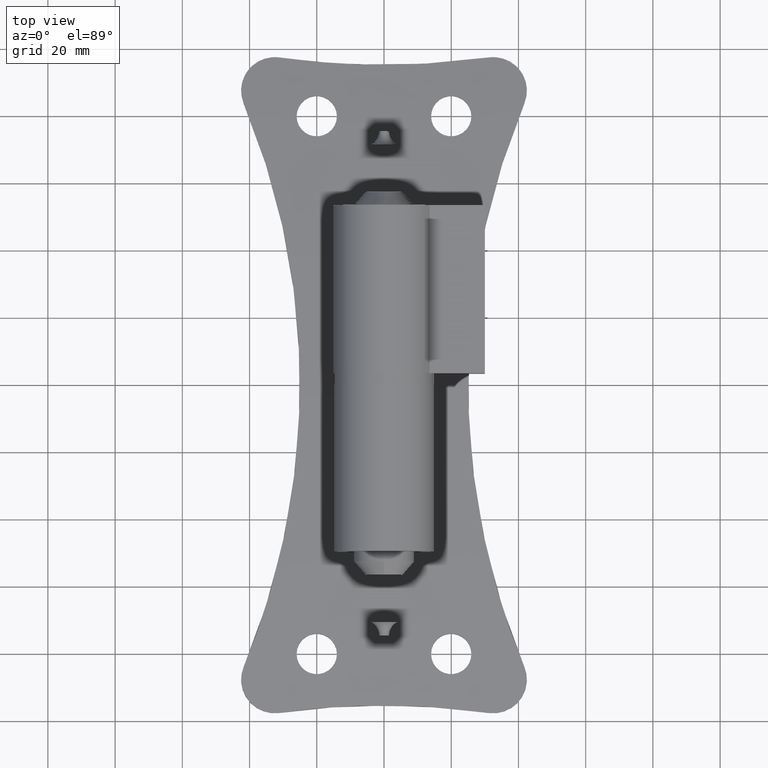
[diagram: clean part render]
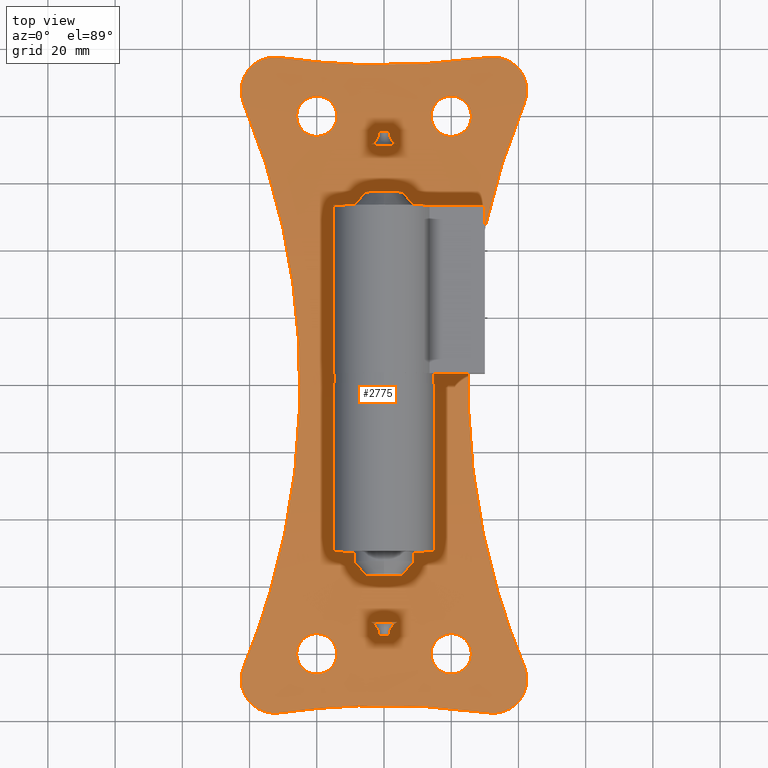
[diagram: same view with one face highlighted and labeled with its STEP entity id]
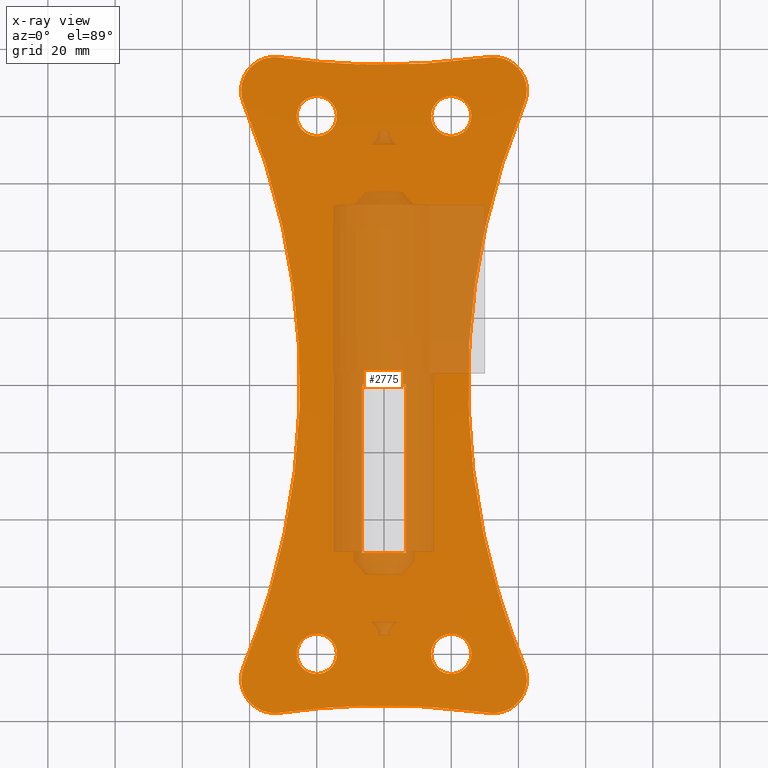
[diagram: x-ray of the same camera — body ghosted, the highlighted face saturated]
A machine part, top view. The second image highlights one B-rep face of the part: STEP entity #2775.
The next image is the same camera in x-ray: the body ghosted, the highlighted face saturated — about 29% of this face is hidden behind the body in this view.
In plain terms, the highlighted cylindrical surface (partial cylindrical patch) has radius 955.075 mm, axis along (1, 0, 0).
Its self-contained STEP definition (entity closure, byte-faithful):
#67 = CARTESIAN_POINT ( 'NONE',  ( 20.38953894252290411, -73.99984378342405478, 5.128905731095128040 ) ) ;
#77 = AXIS2_PLACEMENT_3D ( 'NONE', #5020, #6675, #11379 ) ;
#147 = ORIENTED_EDGE ( 'NONE', *, *, #6904, .T. ) ;
#249 = DIRECTION ( 'NONE',  ( 1.000000000000000000, 0.000000000000000000, 0.000000000000000000 ) ) ;
#269 = CARTESIAN_POINT ( 'NONE',  ( 13.99999999999999289, -80.00000000000000000, 4.643579654035057125 ) ) ;
#311 = VERTEX_POINT ( 'NONE', #794 ) ;
#352 = CARTESIAN_POINT ( 'NONE',  ( -14.90112597955898011, 76.83145973765657288, 4.904625982185868871 ) ) ;
#392 = CARTESIAN_POINT ( 'NONE',  ( -37.21942091343403547, -71.98333903162499325, 5.284988638162897878 ) ) ;
#393 = CARTESIAN_POINT ( 'NONE',  ( -21.35917746336373924, 85.84730238148533488, 4.133965936338867664 ) ) ;
#426 = CARTESIAN_POINT ( 'NONE',  ( -18.44149924809561369, 74.19263012545444269, 5.113906961940029028 ) ) ;
#435 = CARTESIAN_POINT ( 'NONE',  ( 41.37098358586339231, -92.23641888702290714, 3.535773216743924863 ) ) ;
#453 = CARTESIAN_POINT ( 'NONE',  ( 32.34425567468348817, -56.56549752855829638, 6.348277840994082766 ) ) ;
#461 = CARTESIAN_POINT ( 'NONE',  ( 13.99999999999999467, -79.60432704719137575, 4.676839317866527068 ) ) ;
#462 = CARTESIAN_POINT ( 'NONE',  ( -22.48073163653142714, 74.53335175577029759, 5.087297139820865510 ) ) ;
#485 = CARTESIAN_POINT ( 'NONE',  ( -31.08972702664035381, 97.50000000000000000, 3.010261692754534479 ) ) ;
#490 = CARTESIAN_POINT ( 'NONE',  ( 38.96373255751093723, 77.10468155604596063, 4.905950750514575631 ) ) ;
#501 = CARTESIAN_POINT ( 'NONE',  ( -35.49831914455320003, -66.86024807464134767, 5.658382011661812427 ) ) ;
#502 = CARTESIAN_POINT ( 'NONE',  ( -24.52228379087605958, 76.03739386612602402, 4.968406000882094276 ) ) ;
#524 = CARTESIAN_POINT ( 'NONE',  ( -42.47086238728693530, 86.72038213260518091, 4.054864956991383274 ) ) ;
#543 = CARTESIAN_POINT ( 'NONE',  ( -32.38872751653801174, 56.72507851762777875, 6.338472820810556740 ) ) ;
#544 = CARTESIAN_POINT ( 'NONE',  ( -25.99999999999999645, 80.39567295280868109, 4.610319990203588070 ) ) ;
#548 = CARTESIAN_POINT ( 'NONE',  ( 22.47835140023076406, 74.53223177994451021, 5.087384833920205907 ) ) ;
#549 = CARTESIAN_POINT ( 'NONE',  ( 33.29248273199380037, -97.57810093098311199, 3.002245079852325915 ) ) ;
#551 = ORIENTED_EDGE ( 'NONE', *, *, #1523, .T. ) ;
#558 = CARTESIAN_POINT ( 'NONE',  ( -42.49988426956178245, 88.04125965767097739, 3.933509621829759606 ) ) ;
#574 = CARTESIAN_POINT ( 'NONE',  ( 13.99999999999999289, -80.00000000000000000, 4.643579654035057125 ) ) ;
#580 = EDGE_CURVE ( 'NONE', #646, #2191, #5761, .T. ) ;
#583 = CARTESIAN_POINT ( 'NONE',  ( 25.99999931265721642, 80.39085811333012543, 4.610724713889224446 ) ) ;
#584 = CARTESIAN_POINT ( 'NONE',  ( 37.07425538021107059, -96.50322609648956984, 3.112049771557642952 ) ) ;
#618 = CARTESIAN_POINT ( 'NONE',  ( -21.92636514581279883, 85.68576220429061152, 4.148532184006581858 ) ) ;
#622 = CARTESIAN_POINT ( 'NONE',  ( -25.68611186804178814, -78.07469569558034550, 4.803475673605131391 ) ) ;
#626 = CARTESIAN_POINT ( 'NONE',  ( 14.20003116791192532, 78.45112092553701189, 4.772525697852572968 ) ) ;
#646 = VERTEX_POINT ( 'NONE', #9670 ) ;
#659 = CARTESIAN_POINT ( 'NONE',  ( 22.12383013444777546, -85.61497748363740357, 4.154907081231379529 ) ) ;
#662 = CARTESIAN_POINT ( 'NONE',  ( -17.87616986555221388, -85.61497748363740357, 4.154907081231384858 ) ) ;
#667 = CARTESIAN_POINT ( 'NONE',  ( 21.93301975504516577, 74.30629342943419147, 5.105052588598502084 ) ) ;
#670 = CARTESIAN_POINT ( 'NONE',  ( 42.29830551828416674, 85.41817650802993001, 4.172995917721152637 ) ) ;
#697 = CARTESIAN_POINT ( 'NONE',  ( 16.99450076805464604, -85.20774787395704664, 4.191493791963011084 ) ) ;
#700 = CARTESIAN_POINT ( 'NONE',  ( -15.47436272438539007, -83.95872442004186098, 4.302561577367376877 ) ) ;
#704 = CARTESIAN_POINT ( 'NONE',  ( 25.38485781762908999, 77.34632584122981314, 4.862934467281959883 ) ) ;
#706 = CARTESIAN_POINT ( 'NONE',  ( 42.04281859660469678, 90.62134775770562101, 3.691116763850521121 ) ) ;
#714 = CARTESIAN_POINT ( 'NONE',  ( -34.59295373956069852, -97.38848348802582677, 3.021705794660900057 ) ) ;
#733 = CARTESIAN_POINT ( 'NONE',  ( 25.38485781762908999, -77.34632584122981314, 4.862934467281959883 ) ) ;
#735 = CARTESIAN_POINT ( 'NONE',  ( -19.61046105747709589, -73.99984378342401214, 5.128905731095128040 ) ) ;
#743 = CARTESIAN_POINT ( 'NONE',  ( 40.93235364281834876, 92.99314894419856614, 3.462044705490265439 ) ) ;
#759 = B_SPLINE_CURVE_WITH_KNOTS ( 'NONE', 3,
 ( #2113, #490, #3133, #1377, #9454, #5812, #2192, #1267, #4085, #3028, #3097, #2152, #7667, #2222, #5853, #6739, #3176, #5889, #453, #8448, #6703, #9417, #1338, #7623, #4045, #9335 ),
 .UNSPECIFIED., .F., .F.,
 ( 4, 2, 2, 2, 2, 2, 2, 2, 2, 2, 2, 2, 4 ),
 ( -0.08553153312487930815, -0.06414806992872293390, -0.04276460673256655270, -0.02138114353641017151, -0.01603527773737108142, -0.01068941193833200520, 2.319659746174984605E-06, 0.02138578285590252148, 0.04276924605205890961, 0.06415270924821524223, 0.06949857504725436008, 0.07484444084629345018, 0.08553617244437163036 ),
 .UNSPECIFIED. ) ;
#773 = CARTESIAN_POINT ( 'NONE',  ( -14.90112597955898011, -76.83145973765657288, 4.904625982185868871 ) ) ;
#780 = CARTESIAN_POINT ( 'NONE',  ( 14.90337146697903847, 83.17224150446676845, 4.371614376914694233 ) ) ;
#794 = CARTESIAN_POINT ( 'NONE',  ( 6.499999999999999112, -49.99999999999997158, 6.690304111017897348 ) ) ;
#812 = CARTESIAN_POINT ( 'NONE',  ( -17.52164859976924305, -74.53223177994449600, 5.087384833920212124 ) ) ;
#844 = DIRECTION ( 'NONE',  ( 1.000000000000000000, -0.000000000000000000, -0.000000000000000000 ) ) ;
#915 = EDGE_CURVE ( 'NONE', #9550, #4984, #3052, .T. ) ;
#929 = CARTESIAN_POINT ( 'NONE',  ( 18.45057767020424322, -85.79983318403834858, 4.138249828024449961 ) ) ;
#966 = CARTESIAN_POINT ( 'NONE',  ( 20.72648468442696412, 96.02374582520307911, 3.161758411144210967 ) ) ;
#967 = CARTESIAN_POINT ( 'NONE',  ( 20.78761815685286507, -74.03894916206363064, 5.125868995620573187 ) ) ;
#1003 = CARTESIAN_POINT ( 'NONE',  ( 31.08972702664037868, -97.50000000000000000, 3.010261692754534479 ) ) ;
#1038 = ORIENTED_EDGE ( 'NONE', *, *, #5554, .F. ) ;
#1105 = CARTESIAN_POINT ( 'NONE',  ( -25.19882114523142391, -83.00180207539969501, 4.386499939444332696 ) ) ;
#1114 = CARTESIAN_POINT ( 'NONE',  ( 31.08972702664043197, 97.50000000000000000, 3.010261692754534479 ) ) ;
#1122 = AXIS2_PLACEMENT_3D ( 'NONE', #8828, #3316, #10635 ) ;
#1202 = CARTESIAN_POINT ( 'NONE',  ( -23.66699811353419491, 75.23461913441855131, 5.032166007381531081 ) ) ;
#1226 = ORIENTED_EDGE ( 'NONE', *, *, #3628, .F. ) ;
#1243 = CARTESIAN_POINT ( 'NONE',  ( -14.53022768987993274, 77.52609323261317797, 4.848312551813945603 ) ) ;
#1267 = CARTESIAN_POINT ( 'NONE',  ( 25.89708387510080456, 19.83820288359617834, 7.795620354405551566 ) ) ;
#1275 = CARTESIAN_POINT ( 'NONE',  ( -18.63197999048513154, 85.84524476323113618, 4.134151648387684119 ) ) ;
#1282 = CARTESIAN_POINT ( 'NONE',  ( 42.29830551828416674, -85.41817650802993001, 4.172995917721151748 ) ) ;
#1311 = CARTESIAN_POINT ( 'NONE',  ( -14.19192085960086125, 78.44456283631639337, 4.773125379297249893 ) ) ;
#1329 = B_SPLINE_CURVE_WITH_KNOTS ( 'NONE', 3,
 ( #4263, #6023, #670, #4142, #6917, #11432, #1543, #7845, #2444, #706, #7883, #2357, #2486, #743, #8744, #3364, #1467, #4183, #9671, #10602, #3401, #10475, #7723, #8791, #1583, #9708, #4304, #5197, #11556, #2318 ),
 .UNSPECIFIED., .F., .F.,
 ( 4, 2, 2, 2, 2, 2, 2, 2, 2, 2, 2, 2, 2, 2, 4 ),
 ( 0.000000000000000000, 0.002626392841679307377, 0.003939589262518981665, 0.005252785683358655519, 0.006565982104198328506, 0.007879178525038003228, 0.009192374945877677950, 0.01050557136671735267, 0.01313196420839673161, 0.01444516062923641500, 0.01575835705007609666, 0.01707155347091577832, 0.01838474989175545998, 0.01969794631259514164, 0.02101114273343482330 ),
 .UNSPECIFIED. ) ;
#1338 = CARTESIAN_POINT ( 'NONE',  ( 37.21942091343402836, -71.98333903162497904, 5.284988638162904095 ) ) ;
#1349 = CARTESIAN_POINT ( 'NONE',  ( -21.56049645467721732, 74.19298493346305179, 5.113879355043983388 ) ) ;
#1352 = CARTESIAN_POINT ( 'NONE',  ( -25.99999999999999645, -79.60432704719136154, 4.676839317866524404 ) ) ;
#1359 = CARTESIAN_POINT ( 'NONE',  ( 42.07254866760656853, -84.57507216754625290, 4.248281004281913908 ) ) ;
#1372 = CARTESIAN_POINT ( 'NONE',  ( -35.44974497225751264, 97.16524408647761391, 3.044562173517974202 ) ) ;
#1377 = CARTESIAN_POINT ( 'NONE',  ( 32.38872751653794069, 56.72507851762770059, 6.338472820810558517 ) ) ;
#1417 = CARTESIAN_POINT ( 'NONE',  ( -27.84986203454163700, 35.84946207879887226, 7.352564389524271604 ) ) ;
#1423 = CARTESIAN_POINT ( 'NONE',  ( 22.65832263043901307, 74.61741203134808131, 5.080714948361076289 ) ) ;
#1456 = CARTESIAN_POINT ( 'NONE',  ( 14.78997024952242789, -76.99848293728615545, 4.891173520855625512 ) ) ;
#1462 = FACE_BOUND ( 'NONE', #4728, .T. ) ;
#1465 = CARTESIAN_POINT ( 'NONE',  ( 25.96217401692836191, 80.77930739851655062, 4.577829776800829364 ) ) ;
#1467 = CARTESIAN_POINT ( 'NONE',  ( 39.25861678960179546, 95.02270724835108240, 3.261375921264780597 ) ) ;
#1475 = CARTESIAN_POINT ( 'NONE',  ( -42.35690489916753165, 89.34105548381569406, 3.812279806565538109 ) ) ;
#1496 = CARTESIAN_POINT ( 'NONE',  ( -25.99999999999999645, 80.00000000000001421, 4.643579654035056237 ) ) ;
#1502 = CARTESIAN_POINT ( 'NONE',  ( 20.38953894252290411, 73.99984378342405478, 5.128905731095128040 ) ) ;
#1514 = CARTESIAN_POINT ( 'NONE',  ( -42.27164164359116683, -89.77003359696236373, 3.771874392545359722 ) ) ;
#1523 = EDGE_CURVE ( 'NONE', #3964, #6342, #3161, .T. ) ;
#1533 = CARTESIAN_POINT ( 'NONE',  ( 20.40175963343811816, -85.99962715519738765, 4.120205448654063574 ) ) ;
#1536 = CARTESIAN_POINT ( 'NONE',  ( -18.06328055823369638, -85.68226839863677924, 4.148846930025799296 ) ) ;
#1541 = CARTESIAN_POINT ( 'NONE',  ( 25.79941008262649760, 81.55091277241662340, 4.511958175971805929 ) ) ;
#1543 = CARTESIAN_POINT ( 'NONE',  ( 42.47102798285180825, 88.47666871078270390, 3.893097364567644991 ) ) ;
#1551 = CARTESIAN_POINT ( 'NONE',  ( -42.47086238728693530, -86.72038213260518091, 4.054864956991383274 ) ) ;
#1570 = CARTESIAN_POINT ( 'NONE',  ( 25.99999931265721642, -80.39085811333012543, 4.610724713889224446 ) ) ;
#1577 = CARTESIAN_POINT ( 'NONE',  ( -22.11398701008044654, -85.61871324946757511, 4.154570833808600483 ) ) ;
#1581 = CARTESIAN_POINT ( 'NONE',  ( 23.50236392452704592, 84.87565643565690721, 4.221163006577134169 ) ) ;
#1583 = CARTESIAN_POINT ( 'NONE',  ( 34.16146068248070833, 97.47066804902262049, 3.013272884374626148 ) ) ;
#1612 = CARTESIAN_POINT ( 'NONE',  ( 25.69502309912079241, -78.07095692800947973, 4.803833362735145940 ) ) ;
#1615 = CARTESIAN_POINT ( 'NONE',  ( -14.15246220936439414, -81.35831202029136477, 4.528445463597412513 ) ) ;
#1622 = VERTEX_POINT ( 'NONE', #11691 ) ;
#1652 = CARTESIAN_POINT ( 'NONE',  ( -23.00457464657049655, -74.80276941872043039, 5.066170891479674587 ) ) ;
#1796 = CARTESIAN_POINT ( 'NONE',  ( 14.90337146697903847, -83.17224150446676845, 4.371614376914694233 ) ) ;
#1836 = CARTESIAN_POINT ( 'NONE',  ( 19.60566347664058640, -74.00015717560852124, 5.128881375991415581 ) ) ;
#1866 = CARTESIAN_POINT ( 'NONE',  ( -25.46754120021757473, -82.47872336353071887, 4.431987748561756923 ) ) ;
#1892 = CARTESIAN_POINT ( 'NONE',  ( -25.99999999999999645, 80.00000000000001421, 4.643579654035056237 ) ) ;
#2024 = ORIENTED_EDGE ( 'NONE', *, *, #3174, .F. ) ;
#2065 = DIRECTION ( 'NONE',  ( 1.000000000000000000, -0.000000000000000000, -0.000000000000000000 ) ) ;
#2090 = CARTESIAN_POINT ( 'NONE',  ( -14.15246220936439414, 81.35831202029136477, 4.528445463597412513 ) ) ;
#2113 = CARTESIAN_POINT ( 'NONE',  ( 41.73245614035089091, 83.75784016260337239, 4.320227545400734392 ) ) ;
#2118 = EDGE_CURVE ( 'NONE', #3307, #3307, #2811, .T. ) ;
#2123 = CARTESIAN_POINT ( 'NONE',  ( -14.03907850348505626, 79.21222910456552313, 4.709548084509319388 ) ) ;
#2152 = CARTESIAN_POINT ( 'NONE',  ( 25.08981896449668980, 7.225989119736580868, 7.979486417518203645 ) ) ;
#2162 = CARTESIAN_POINT ( 'NONE',  ( -21.54942232979576033, 85.79983318403837700, 4.138249828024456178 ) ) ;
#2191 = VERTEX_POINT ( 'NONE', #1003 ) ;
#2192 = CARTESIAN_POINT ( 'NONE',  ( 26.78861674261857928, 28.78064431700069292, 7.593076006480350415 ) ) ;
#2201 = CARTESIAN_POINT ( 'NONE',  ( -22.65779860566638249, 74.61717721882658338, 5.080733315998650745 ) ) ;
#2207 = CARTESIAN_POINT ( 'NONE',  ( 40.68519964446917925, -93.36157256240568358, 3.425917421877732849 ) ) ;
#2214 = CARTESIAN_POINT ( 'NONE',  ( -6.500000000000000000, 0.000000000000000000, 8.000000000000007105 ) ) ;
#2222 = CARTESIAN_POINT ( 'NONE',  ( 25.00007807629693346, -7.233689743125000682, 7.999982178745385752 ) ) ;
#2233 = CARTESIAN_POINT ( 'NONE',  ( -27.81914940996750119, -35.66458637150518740, 7.359496663043878506 ) ) ;
#2234 = CARTESIAN_POINT ( 'NONE',  ( -23.17519512477292665, 74.90519201448212527, 5.058120574788921964 ) ) ;
#2250 = CARTESIAN_POINT ( 'NONE',  ( -31.52933554900748447, 97.56262267107051400, 3.003835205144389953 ) ) ;
#2268 = CARTESIAN_POINT ( 'NONE',  ( -36.63070861218859875, -70.27770558669986656, 5.412393099398962626 ) ) ;
#2286 = B_SPLINE_CURVE_WITH_KNOTS ( 'NONE', 3,
 ( #10827, #966, #10950, #10904, #4609 ),
 .UNSPECIFIED., .F., .F.,
 ( 4, 1, 4 ),
 ( 0.000000000000000000, 0.03108972702664039231, 0.06217945405328078462 ),
 .UNSPECIFIED. ) ;
#2307 = CARTESIAN_POINT ( 'NONE',  ( -26.76851631791810604, -28.61751080596180685, 7.597634484983089465 ) ) ;
#2308 = CARTESIAN_POINT ( 'NONE',  ( -25.80651907822484503, 81.56219717917282708, 4.511051837378126095 ) ) ;
#2315 = CARTESIAN_POINT ( 'NONE',  ( 23.00621499696647732, 74.80369325002899927, 5.066098346195244240 ) ) ;
#2318 = CARTESIAN_POINT ( 'NONE',  ( 31.08972702664043197, 97.50000000000000000, 3.010261692754534479 ) ) ;
#2345 = CARTESIAN_POINT ( 'NONE',  ( 15.47771620912393686, -76.03739386612603823, 4.968406000882089835 ) ) ;
#2347 = CARTESIAN_POINT ( 'NONE',  ( -23.96649060261741582, 84.51888637375765256, 4.252961291260120014 ) ) ;
#2355 = CARTESIAN_POINT ( 'NONE',  ( 25.61996822805387453, 82.11045516334424121, 4.463838266258040477 ) ) ;
#2357 = CARTESIAN_POINT ( 'NONE',  ( 41.56449278522947566, 91.84561165270496019, 3.573621894673746802 ) ) ;
#2394 = CARTESIAN_POINT ( 'NONE',  ( 24.52511331423479035, 76.04016848724278077, 4.968185343255829167 ) ) ;
#2415 = CARTESIAN_POINT ( 'NONE',  ( -40.93235364281832744, 92.99314894419865141, 3.462044705490264107 ) ) ;
#2423 = B_SPLINE_CURVE_WITH_KNOTS ( 'NONE', 3,
 ( #6033, #3239, #10534, #1551, #11443, #7697, #4115, #6880, #1514, #7851, #2454, #10447, #4272, #8755, #5002, #9558, #4150, #5956, #10486, #3373, #5040, #9678, #7081, #714, #3522, #4461, #7003, #7887, #4423, #7966 ),
 .UNSPECIFIED., .F., .F.,
 ( 4, 2, 2, 2, 2, 2, 2, 2, 2, 2, 2, 2, 2, 2, 4 ),
 ( 0.000000000000000000, 0.002626392841679286994, 0.003939589262518950440, 0.005252785683358614753, 0.006565982104198278199, 0.007879178525037942513, 0.009192374945877606826, 0.01050557136671727114, 0.01313196420839661885, 0.01444516062923631439, 0.01575835705007600646, 0.01707155347091570199, 0.01838474989175539753, 0.01969794631259509307, 0.02101114273343478514 ),
 .UNSPECIFIED. ) ;
#2432 = CARTESIAN_POINT ( 'NONE',  ( 24.11158625609096973, -84.37413778987250623, 4.265779620651570347 ) ) ;
#2434 = CARTESIAN_POINT ( 'NONE',  ( -14.19192085960086125, -78.44456283631639337, 4.773125379297249893 ) ) ;
#2441 = CARTESIAN_POINT ( 'NONE',  ( 24.52563727561460638, 83.95872442004181835, 4.302561577367367995 ) ) ;
#2444 = CARTESIAN_POINT ( 'NONE',  ( 42.27164164359116683, 89.77003359696234952, 3.771874392545357946 ) ) ;
#2454 = CARTESIAN_POINT ( 'NONE',  ( -41.90011631726169838, -91.03920819902351980, 3.651186279890733299 ) ) ;
#2474 = CARTESIAN_POINT ( 'NONE',  ( 15.23165333437148661, -83.66303485397676809, 4.328625841360244308 ) ) ;
#2478 = CARTESIAN_POINT ( 'NONE',  ( -20.78321791510590799, -85.96152696607290977, 4.123652473659033646 ) ) ;
#2483 = CARTESIAN_POINT ( 'NONE',  ( 25.46977231012007437, 77.52609323261316376, 4.848312551813941162 ) ) ;
#2486 = CARTESIAN_POINT ( 'NONE',  ( 41.37098358586338520, 92.23641888702286451, 3.535773216743926195 ) ) ;
#2508 = CARTESIAN_POINT ( 'NONE',  ( 23.01280349819062110, -85.20358818843818938, 4.191866600561685807 ) ) ;
#2510 = CARTESIAN_POINT ( 'NONE',  ( -14.31428956271019537, -81.92644349966681716, 4.479700578345188866 ) ) ;
#2518 = CARTESIAN_POINT ( 'NONE',  ( 16.03350939738257708, 84.51888637375759572, 4.252961291260116461 ) ) ;
#2553 = CARTESIAN_POINT ( 'NONE',  ( -16.82557861521599563, -74.90477352212549533, 5.058153383875794162 ) ) ;
#2554 = DIRECTION ( 'NONE',  ( 0.000000000000000000, 0.000000000000000000, -1.000000000000000000 ) ) ;
#2556 = CARTESIAN_POINT ( 'NONE',  ( 16.34246341989983264, 84.77243016891367233, 4.230386088580290860 ) ) ;
#2665 = CARTESIAN_POINT ( 'NONE',  ( 19.60945497643924540, 86.00036760449008000, 4.120138502724614682 ) ) ;
#2702 = CARTESIAN_POINT ( 'NONE',  ( 22.47835140023076406, -74.53223177994451021, 5.087384833920205907 ) ) ;
#2729 = CARTESIAN_POINT ( 'NONE',  ( -24.52025723029109727, -83.96492828832823818, 4.302014078635721717 ) ) ;
#2743 = CARTESIAN_POINT ( 'NONE',  ( 25.79941008262649760, -81.55091277241662340, 4.511958175971805929 ) ) ;
#2775 = ADVANCED_FACE ( 'NONE', ( #9507, #1462, #6238, #6932, #8784, #6367 ), #5111, .T. ) ;
#2811 = B_SPLINE_CURVE_WITH_KNOTS ( 'NONE', 3,
 ( #574, #461, #10467, #8572, #6824, #9460, #9503, #7631, #1456, #7751, #2345, #9577, #4173, #10510, #4291, #10625, #5184, #11546, #5106, #8824, #1836, #67, #967, #6090, #6987, #2702, #10863, #5148, #5421, #3663, #9739, #10667, #7833, #9973, #8778, #733, #6320, #1612, #10592, #3392, #6946, #1570, #7908, #8148, #2743, #10557, #11587, #4521, #9066, #5224, #11462, #2432, #3625, #7226, #3354, #2508, #6013, #659, #6905, #8114, #4333, #3432, #1533, #8737, #6289, #9656, #929, #11501, #4251, #6053, #697, #7871, #9698, #7184, #2474, #1796, #9024, #9933, #10095, #6438, #3701, #11059, #2868, #269 ),
 .UNSPECIFIED., .T., .F.,
 ( 4, 2, 2, 2, 2, 2, 2, 2, 2, 2, 2, 2, 2, 2, 2, 2, 2, 2, 2, 2, 2, 2, 2, 2, 2, 2, 2, 2, 2, 2, 2, 2, 2, 2, 2, 2, 2, 2, 2, 2, 2, 4 ),
 ( 0.000000000000000000, 0.001174326674018338163, 0.001761490011027507354, 0.002348653348036676327, 0.003522980022055014707, 0.004697306696073352654, 0.005871633370091685830, 0.006458796707100857189, 0.007045960044110029415, 0.008220286718128345244, 0.009394613392146663675, 0.01056894006616498037, 0.01174326674018329707, 0.01233043007719246929, 0.01291759341420163978, 0.01409192008821996862, 0.01526624676223829573, 0.01585341009924747316, 0.01644057343625665579, 0.01761490011027501412, 0.01878922678429337592, 0.01996355345831174119, 0.02055071679532092035, 0.02113788013233010299, 0.02231220680634846479, 0.02348653348036682659, 0.02407369681737602310, 0.02466086015438521614, 0.02583518682840363345, 0.02642235016541284037, 0.02700951350242204729, 0.02818384017644047154, 0.02935816685045889926, 0.02994533018746810618, 0.03053249352447731310, 0.03170682019849571653, 0.03288114687251410956, 0.03405547354653250952, 0.03464263688354170256, 0.03522980022055090255, 0.03640412689456933720, 0.03757845356858777880 ),
 .UNSPECIFIED. ) ;
#2868 = CARTESIAN_POINT ( 'NONE',  ( 13.99999999999999112, -80.39567295280865267, 4.610319990203583629 ) ) ;
#2883 = EDGE_LOOP ( 'NONE', ( #9546 ) ) ;
#2948 = CARTESIAN_POINT ( 'NONE',  ( 41.73245614035089091, 83.75784016260337239, 4.320227545400734392 ) ) ;
#2997 = CARTESIAN_POINT ( 'NONE',  ( -15.22649251106214585, 76.34400753081558832, 4.943883074607734684 ) ) ;
#3028 = CARTESIAN_POINT ( 'NONE',  ( 25.47168026215324232, 14.44594657087307965, 7.892438370796466707 ) ) ;
#3037 = CARTESIAN_POINT ( 'NONE',  ( -18.06698024495486266, 74.30629342943421989, 5.105052588598509189 ) ) ;
#3052 = B_SPLINE_CURVE_WITH_KNOTS ( 'NONE', 3,
 ( #9345, #9303, #10232, #543, #4053, #1417, #7593, #3188, #4908, #4945, #3144, #5820, #4872, #6783, #5022, #2307, #2233, #4132, #8573, #5742, #501, #2268, #392, #11216, #9461, #7714 ),
 .UNSPECIFIED., .F., .F.,
 ( 4, 2, 2, 2, 2, 2, 2, 2, 2, 2, 2, 2, 4 ),
 ( -0.08553153312487940529, -0.06414806992872301716, -0.04276460673256662903, -0.02138114353641024090, -0.01603527773737115081, -0.01068941193833206071, 2.319659746119473454E-06, 0.02138578285590250760, 0.04276924605205889574, 0.06415270924821525611, 0.06949857504725437396, 0.07484444084629346405, 0.08553617244437161649 ),
 .UNSPECIFIED. ) ;
#3056 = VERTEX_POINT ( 'NONE', #1114 ) ;
#3072 = CARTESIAN_POINT ( 'NONE',  ( -25.68611186804178814, 78.07469569558034550, 4.803475673605131391 ) ) ;
#3097 = CARTESIAN_POINT ( 'NONE',  ( 25.35927826689682618, 12.64047953659341772, 7.918053228421905843 ) ) ;
#3106 = CARTESIAN_POINT ( 'NONE',  ( -14.20058991737350418, 81.55091277241660919, 4.511958175971812146 ) ) ;
#3133 = CARTESIAN_POINT ( 'NONE',  ( 36.54567487948116167, 70.36657067788107156, 5.428821626150370783 ) ) ;
#3144 = CARTESIAN_POINT ( 'NONE',  ( -25.35927826689682263, 12.64047953659346213, 7.918053228421905843 ) ) ;
#3145 = CARTESIAN_POINT ( 'NONE',  ( -17.87616986555221388, 85.61497748363740357, 4.154907081231384858 ) ) ;
#3161 = LINE ( 'NONE', #7371, #6529 ) ;
#3174 = EDGE_CURVE ( 'NONE', #5024, #646, #759, .T. ) ;
#3176 = CARTESIAN_POINT ( 'NONE',  ( 27.81914940996751540, -35.66458637150522293, 7.359496663043877618 ) ) ;
#3188 = CARTESIAN_POINT ( 'NONE',  ( -25.89708387510079746, 19.83820288359623873, 7.795620354405551566 ) ) ;
#3218 = VERTEX_POINT ( 'NONE', #5735 ) ;
#3232 = CARTESIAN_POINT ( 'NONE',  ( 25.19951676047375599, 76.99938244446938995, 4.891060481446313446 ) ) ;
#3239 = CARTESIAN_POINT ( 'NONE',  ( -42.07254866760656142, -84.57507216754625290, 4.248281004281913020 ) ) ;
#3240 = EDGE_LOOP ( 'NONE', ( #8368, #1226, #3414, #551 ) ) ;
#3245 = CARTESIAN_POINT ( 'NONE',  ( -37.83598159541200801, 96.06868332312541270, 3.156082576875590018 ) ) ;
#3267 = CARTESIAN_POINT ( 'NONE',  ( -23.00549923194533974, 85.20774787395704664, 4.191493791963015525 ) ) ;
#3274 = CARTESIAN_POINT ( 'NONE',  ( 25.21168595995411721, 82.99905166535172896, 4.386781183609132384 ) ) ;
#3282 = VECTOR ( 'NONE', #2065, 1000.000000000000000 ) ;
#3292 = CARTESIAN_POINT ( 'NONE',  ( -38.20705073650852057, 95.82330322565682934, 3.180871342491382592 ) ) ;
#3307 = VERTEX_POINT ( 'NONE', #3527 ) ;
#3314 = CARTESIAN_POINT ( 'NONE',  ( -14.78831404004587036, -82.99905166535170054, 4.386781183609138601 ) ) ;
#3316 = DIRECTION ( 'NONE',  ( 1.000000000000000000, -0.000000000000000000, 0.000000000000000000 ) ) ;
#3323 = CARTESIAN_POINT ( 'NONE',  ( 25.84753779063559875, 81.35831202029140741, 4.528445463597409848 ) ) ;
#3341 = CARTESIAN_POINT ( 'NONE',  ( -31.08972702664035381, 97.50000000000000000, 3.010261692754534479 ) ) ;
#3354 = CARTESIAN_POINT ( 'NONE',  ( 23.50236392452704592, -84.87565643565690721, 4.221163006577134169 ) ) ;
#3356 = CARTESIAN_POINT ( 'NONE',  ( -22.11398701008044654, 85.61871324946757511, 4.154570833808600483 ) ) ;
#3357 = CARTESIAN_POINT ( 'NONE',  ( -19.59824036656188539, -85.99962715519731660, 4.120205448654066238 ) ) ;
#3362 = CARTESIAN_POINT ( 'NONE',  ( 14.31388813195820298, 78.07469569558037392, 4.803475673605128726 ) ) ;
#3364 = CARTESIAN_POINT ( 'NONE',  ( 39.87809465631526962, 94.40723287931564300, 3.322821766808111033 ) ) ;
#3373 = CARTESIAN_POINT ( 'NONE',  ( -37.07425538021109190, -96.50322609648951300, 3.112049771557648281 ) ) ;
#3392 = CARTESIAN_POINT ( 'NONE',  ( 25.96092149651494907, -79.21222910456550892, 4.709548084509314059 ) ) ;
#3395 = CARTESIAN_POINT ( 'NONE',  ( -21.56049645467721732, -74.19298493346305179, 5.113879355043983388 ) ) ;
#3398 = CARTESIAN_POINT ( 'NONE',  ( 16.99542535342950700, 74.80276941872045882, 5.066170891479672811 ) ) ;
#3401 = CARTESIAN_POINT ( 'NONE',  ( 36.68099865724120434, 96.69450842094539667, 3.092592679557621960 ) ) ;
#3414 = ORIENTED_EDGE ( 'NONE', *, *, #3620, .F. ) ;
#3432 = CARTESIAN_POINT ( 'NONE',  ( 20.79180611306822968, -85.96041134766424818, 4.123753344339909255 ) ) ;
#3434 = CARTESIAN_POINT ( 'NONE',  ( -14.20058991737350418, -81.55091277241660919, 4.511958175971812146 ) ) ;
#3476 = CARTESIAN_POINT ( 'NONE',  ( -14.61514218237090823, -77.34632584122978471, 4.862934467281964324 ) ) ;
#3480 = CARTESIAN_POINT ( 'NONE',  ( 14.61603599578538315, 82.65546391451673003, 4.416649625334629903 ) ) ;
#3516 = CARTESIAN_POINT ( 'NONE',  ( 17.88601298991954636, 85.61871324946764616, 4.154570833808597818 ) ) ;
#3522 = CARTESIAN_POINT ( 'NONE',  ( -34.16146068248069412, -97.47066804902263470, 3.013272884374631477 ) ) ;
#3527 = CARTESIAN_POINT ( 'NONE',  ( 13.99999999999999467, -80.00000000000000000, 4.643579654035057125 ) ) ;
#3546 = ORIENTED_EDGE ( 'NONE', *, *, #580, .F. ) ;
#3550 = CARTESIAN_POINT ( 'NONE',  ( 15.47974276970888674, 83.96492828832823818, 4.302014078635714611 ) ) ;
#3620 = EDGE_CURVE ( 'NONE', #3964, #3218, #6507, .T. ) ;
#3625 = CARTESIAN_POINT ( 'NONE',  ( 23.96650099565378156, -84.50619844199577813, 4.254056142434614607 ) ) ;
#3628 = EDGE_CURVE ( 'NONE', #3218, #311, #3708, .T. ) ;
#3663 = CARTESIAN_POINT ( 'NONE',  ( 23.66224866358562551, -75.23124013163833013, 5.032432550992951725 ) ) ;
#3701 = CARTESIAN_POINT ( 'NONE',  ( 14.19348092177516385, -81.56219717917285550, 4.511051837378127871 ) ) ;
#3708 = LINE ( 'NONE', #3845, #3282 ) ;
#3751 = EDGE_CURVE ( 'NONE', #3056, #11687, #2286, .T. ) ;
#3789 = EDGE_LOOP ( 'NONE', ( #6173 ) ) ;
#3798 = CARTESIAN_POINT ( 'NONE',  ( -25.80651907822484503, -81.56219717917282708, 4.511051837378126095 ) ) ;
#3836 = ORIENTED_EDGE ( 'NONE', *, *, #2118, .T. ) ;
#3845 = CARTESIAN_POINT ( 'NONE',  ( -42.50000000000002132, -50.00000000000000000, 6.690304111018008371 ) ) ;
#3913 = CARTESIAN_POINT ( 'NONE',  ( -16.49763607547294342, 84.87565643565690721, 4.221163006577141275 ) ) ;
#3943 = CARTESIAN_POINT ( 'NONE',  ( -19.59824036656188539, 85.99962715519731660, 4.120205448654066238 ) ) ;
#3964 = VERTEX_POINT ( 'NONE', #2214 ) ;
#3981 = CARTESIAN_POINT ( 'NONE',  ( -14.31428956271019537, 81.92644349966681716, 4.479700578345188866 ) ) ;
#3988 = CARTESIAN_POINT ( 'NONE',  ( 42.35690489916754586, -89.34105548381569406, 3.812279806565538109 ) ) ;
#4015 = VERTEX_POINT ( 'NONE', #7162 ) ;
#4019 = CARTESIAN_POINT ( 'NONE',  ( -15.47436272438539007, 83.95872442004186098, 4.302561577367376877 ) ) ;
#4027 = CARTESIAN_POINT ( 'NONE',  ( 39.87809465631524120, -94.40723287931567143, 3.322821766808109256 ) ) ;
#4045 = CARTESIAN_POINT ( 'NONE',  ( 40.34804017554793631, -80.43113068233202512, 4.613100608331591523 ) ) ;
#4053 = CARTESIAN_POINT ( 'NONE',  ( -30.64989852864795594, 49.82168406428566954, 6.725272201491774737 ) ) ;
#4054 = CARTESIAN_POINT ( 'NONE',  ( -18.44139546180623412, 85.79739667814642701, 4.138469630858789827 ) ) ;
#4056 = CARTESIAN_POINT ( 'NONE',  ( -25.61926011022075045, -77.88753468923748358, 4.818807108031964326 ) ) ;
#4078 = CARTESIAN_POINT ( 'NONE',  ( -42.29830551828417384, 85.41817650802995843, 4.172995917721152637 ) ) ;
#4085 = CARTESIAN_POINT ( 'NONE',  ( 25.74058005284501505, 18.04438152237883841, 7.831222622047899762 ) ) ;
#4115 = CARTESIAN_POINT ( 'NONE',  ( -42.47102798285182246, -88.47666871078276074, 3.893097364567646324 ) ) ;
#4132 = CARTESIAN_POINT ( 'NONE',  ( -30.60703218845782203, -49.63857779898261668, 6.734825171120636611 ) ) ;
#4133 = CARTESIAN_POINT ( 'NONE',  ( -25.96123941031245153, 80.78724108463808307, 4.577156910900200160 ) ) ;
#4139 = CARTESIAN_POINT ( 'NONE',  ( 25.80807914039914408, 78.44456283631639337, 4.773125379297245452 ) ) ;
#4142 = CARTESIAN_POINT ( 'NONE',  ( 42.47086238728693530, 86.72038213260516670, 4.054864956991382385 ) ) ;
#4150 = CARTESIAN_POINT ( 'NONE',  ( -39.25861678960178125, -95.02270724835111082, 3.261375921264673572 ) ) ;
#4173 = CARTESIAN_POINT ( 'NONE',  ( 16.33300188646581930, -75.23461913441857973, 5.032166007381527528 ) ) ;
#4180 = CARTESIAN_POINT ( 'NONE',  ( 22.66818361689202632, 85.38844156630858606, 4.175278208275434721 ) ) ;
#4183 = CARTESIAN_POINT ( 'NONE',  ( 38.20705073650856320, 95.82330322565680092, 3.180871342491491838 ) ) ;
#4194 = CARTESIAN_POINT ( 'NONE',  ( -32.85499745631923929, 97.60334560823420702, 2.999650447952412424 ) ) ;
#4215 = CARTESIAN_POINT ( 'NONE',  ( -14.53022768987993274, -77.52609323261317797, 4.848312551813945603 ) ) ;
#4223 = CARTESIAN_POINT ( 'NONE',  ( 15.47771620912393686, 76.03739386612603823, 4.968406000882089835 ) ) ;
#4237 = CARTESIAN_POINT ( 'NONE',  ( -39.87809465631521277, 94.40723287931564300, 3.322821766808109256 ) ) ;
#4251 = CARTESIAN_POINT ( 'NONE',  ( 17.88601298991954636, -85.61871324946764616, 4.154570833808597818 ) ) ;
#4258 = CARTESIAN_POINT ( 'NONE',  ( -21.35917746336373924, -85.84730238148533488, 4.133965936338867664 ) ) ;
#4261 = CARTESIAN_POINT ( 'NONE',  ( 23.01280349819062110, 85.20358818843818938, 4.191866600561685807 ) ) ;
#4262 = CARTESIAN_POINT ( 'NONE',  ( 37.83598159541205774, -96.06868332312542691, 3.156082576875587353 ) ) ;
#4263 = CARTESIAN_POINT ( 'NONE',  ( 41.73245614035089091, 83.75784016260337239, 4.320227545400734392 ) ) ;
#4272 = CARTESIAN_POINT ( 'NONE',  ( -41.37098358586338520, -92.23641888702290714, 3.535773216743928860 ) ) ;
#4291 = CARTESIAN_POINT ( 'NONE',  ( 16.99542535342950700, -74.80276941872045882, 5.066170891479672811 ) ) ;
#4295 = CARTESIAN_POINT ( 'NONE',  ( -20.39433652335942071, -74.00015717560857809, 5.128881375991419134 ) ) ;
#4301 = CARTESIAN_POINT ( 'NONE',  ( 14.78997024952242789, 76.99848293728615545, 4.891173520855625512 ) ) ;
#4303 = CARTESIAN_POINT ( 'NONE',  ( 31.97392018886317189, -97.59580849378815515, 3.000424722869026617 ) ) ;
#4304 = CARTESIAN_POINT ( 'NONE',  ( 32.85499745631929613, 97.60334560823419281, 2.999650447952408872 ) ) ;
#4333 = CARTESIAN_POINT ( 'NONE',  ( 21.36802000951485070, -85.84524476323113618, 4.134151648387673461 ) ) ;
#4335 = CARTESIAN_POINT ( 'NONE',  ( -16.33821473840198024, -84.75712972758901742, 4.231732653152968204 ) ) ;
#4342 = CARTESIAN_POINT ( 'NONE',  ( 16.99450076805464604, 85.20774787395704664, 4.191493791963011084 ) ) ;
#4368 = CARTESIAN_POINT ( 'NONE',  ( -14.03907850348505626, -79.21222910456552313, 4.709548084509319388 ) ) ;
#4414 = CARTESIAN_POINT ( 'NONE',  ( 13.99999999999999112, 80.39567295280865267, 4.610319990203583629 ) ) ;
#4423 = CARTESIAN_POINT ( 'NONE',  ( -31.52933554900748447, -97.56262267107054242, 3.003835205144390841 ) ) ;
#4461 = CARTESIAN_POINT ( 'NONE',  ( -33.29248273199382879, -97.57810093098306936, 3.002245079852331244 ) ) ;
#4484 = ORIENTED_EDGE ( 'NONE', *, *, #7131, .F. ) ;
#4485 = CARTESIAN_POINT ( 'NONE',  ( 18.64082253663624300, 85.84730238148527803, 4.133965936338861447 ) ) ;
#4521 = CARTESIAN_POINT ( 'NONE',  ( 25.39650346880606335, -82.65141581696435935, 4.417054252018309590 ) ) ;
#4549 = CARTESIAN_POINT ( 'NONE',  ( -25.38396400421460797, -82.65546391451673003, 4.416649625334630791 ) ) ;
#4609 = CARTESIAN_POINT ( 'NONE',  ( -31.08972702664035381, 97.50000000000000000, 3.010261692754534479 ) ) ;
#4630 = CARTESIAN_POINT ( 'NONE',  ( -25.09662853302096153, -83.17224150446676845, 4.371614376914698674 ) ) ;
#4727 = CARTESIAN_POINT ( 'NONE',  ( -25.96124376573039427, 79.21520484585440158, 4.709300018675676824 ) ) ;
#4728 = EDGE_LOOP ( 'NONE', ( #3836 ) ) ;
#4777 = CARTESIAN_POINT ( 'NONE',  ( -42.07254866760656853, 84.57507216754626711, 4.248281004281914797 ) ) ;
#4793 = EDGE_CURVE ( 'NONE', #5024, #3056, #1329, .T. ) ;
#4797 = CARTESIAN_POINT ( 'NONE',  ( -17.52164859976924305, 74.53223177994449600, 5.087384833920212124 ) ) ;
#4835 = CARTESIAN_POINT ( 'NONE',  ( -21.93866608999047330, 74.30836897664369189, 5.104890513431398880 ) ) ;
#4872 = CARTESIAN_POINT ( 'NONE',  ( -24.99996098090521457, 3.613314846957532911, 8.000008906278248233 ) ) ;
#4873 = CARTESIAN_POINT ( 'NONE',  ( -14.38003177194612725, 82.11045516334424121, 4.463838266258048471 ) ) ;
#4879 = CARTESIAN_POINT ( 'NONE',  ( 42.04281859660466836, -90.62134775770560680, 3.691116763850629034 ) ) ;
#4908 = CARTESIAN_POINT ( 'NONE',  ( -25.74058005284505413, 18.04438152237889526, 7.831222622047899762 ) ) ;
#4909 = CARTESIAN_POINT ( 'NONE',  ( -17.33181638310796657, 85.38844156630860027, 4.175278208275443603 ) ) ;
#4945 = CARTESIAN_POINT ( 'NONE',  ( -25.47168026215327430, 14.44594657087313827, 7.892438370796468483 ) ) ;
#4946 = CARTESIAN_POINT ( 'NONE',  ( -19.20819388693176677, 85.96041134766426239, 4.123753344339917248 ) ) ;
#4955 = CARTESIAN_POINT ( 'NONE',  ( 42.47086238728692820, -86.72038213260518091, 4.054864956991382385 ) ) ;
#4984 = VERTEX_POINT ( 'NONE', #5738 ) ;
#5002 = CARTESIAN_POINT ( 'NONE',  ( -40.68519964446920056, -93.36157256240564095, 3.425917421877736402 ) ) ;
#5005 = EDGE_LOOP ( 'NONE', ( #11329, #147, #8189, #3546, #2024, #5039, #6722, #1038 ) ) ;
#5007 = CARTESIAN_POINT ( 'NONE',  ( -42.50011503862865681, 87.16388664193883073, 4.014325804451313928 ) ) ;
#5020 = CARTESIAN_POINT ( 'NONE',  ( 6.499999999999999112, 0.000000000000000000, -947.0748858447125258 ) ) ;
#5022 = CARTESIAN_POINT ( 'NONE',  ( -25.35901755125511414, -14.40205606255258175, 7.917870032814286141 ) ) ;
#5024 = VERTEX_POINT ( 'NONE', #2948 ) ;
#5029 = CARTESIAN_POINT ( 'NONE',  ( 14.03875623426961106, 79.21520484585443000, 4.709300018675679489 ) ) ;
#5039 = ORIENTED_EDGE ( 'NONE', *, *, #4793, .T. ) ;
#5040 = CARTESIAN_POINT ( 'NONE',  ( -36.68099865724119013, -96.69450842094536824, 3.092592679557625956 ) ) ;
#5044 = CARTESIAN_POINT ( 'NONE',  ( -31.97392018886315057, 97.59580849378812673, 3.000424722869030614 ) ) ;
#5071 = CARTESIAN_POINT ( 'NONE',  ( 19.21563421864207299, 74.03834389711362007, 5.125916097265909244 ) ) ;
#5072 = CARTESIAN_POINT ( 'NONE',  ( 35.86977010597699689, -97.02525569238382275, 3.058875770863999755 ) ) ;
#5106 = CARTESIAN_POINT ( 'NONE',  ( 18.43950354532278624, -74.19298493346302337, 5.113879355043984276 ) ) ;
#5109 = CARTESIAN_POINT ( 'NONE',  ( -16.49763607547294342, -84.87565643565690721, 4.221163006577141275 ) ) ;
#5111 = CYLINDRICAL_SURFACE ( 'NONE', #5541, 955.0748858447125258 ) ;
#5115 = CARTESIAN_POINT ( 'NONE',  ( 16.33300188646581930, 75.23461913441857973, 5.032166007381527528 ) ) ;
#5148 = CARTESIAN_POINT ( 'NONE',  ( 23.00621499696647732, -74.80369325002899927, 5.066098346195244240 ) ) ;
#5151 = CARTESIAN_POINT ( 'NONE',  ( -15.22639847625420906, -83.65632464766517273, 4.329216389508986573 ) ) ;
#5157 = CARTESIAN_POINT ( 'NONE',  ( 23.96650099565378156, 84.50619844199577813, 4.254056142434614607 ) ) ;
#5158 = CARTESIAN_POINT ( 'NONE',  ( 32.85499745631925350, -97.60334560823419281, 2.999650447952408872 ) ) ;
#5184 = CARTESIAN_POINT ( 'NONE',  ( 17.51926836346857641, -74.53335175577029759, 5.087297139820864622 ) ) ;
#5188 = CARTESIAN_POINT ( 'NONE',  ( -16.03475886754435109, -75.47962624580974023, 5.012790077195480976 ) ) ;
#5195 = CARTESIAN_POINT ( 'NONE',  ( 17.51926836346857641, 74.53335175577029759, 5.087297139820864622 ) ) ;
#5197 = CARTESIAN_POINT ( 'NONE',  ( 31.97392018886322518, 97.59580849378818357, 3.000424722869026617 ) ) ;
#5218 = B_SPLINE_CURVE_WITH_KNOTS ( 'NONE', 3,
 ( #10215, #4777, #4078, #524, #5007, #558, #9524, #1475, #10493, #7736, #8678, #7703, #11362, #2415, #5998, #4237, #10415, #3292, #3245, #11319, #6805, #9602, #1372, #7660, #11277, #8719, #4194, #5044, #2250, #485 ),
 .UNSPECIFIED., .F., .F.,
 ( 4, 2, 2, 2, 2, 2, 2, 2, 2, 2, 2, 2, 2, 2, 4 ),
 ( 0.000000000000000000, 0.002626392841679366791, 0.003939589262519029370, 0.005252785683358692816, 0.006565982104198354527, 0.007879178525038017106, 0.009192374945877679684, 0.01050557136671734226, 0.01313196420839671252, 0.01444516062923640112, 0.01575835705007609319, 0.01707155347091578526, 0.01838474989175547386, 0.01969794631259516593, 0.02101114273343485453 ),
 .UNSPECIFIED. ) ;
#5224 = CARTESIAN_POINT ( 'NONE',  ( 24.77360152374579982, -83.65632464766515852, 4.329216389508979468 ) ) ;
#5230 = CARTESIAN_POINT ( 'NONE',  ( -19.20819388693176677, -85.96041134766426239, 4.123753344339917248 ) ) ;
#5265 = CARTESIAN_POINT ( 'NONE',  ( -14.03782598307165230, -80.77930739851650799, 4.577829776800833805 ) ) ;
#5270 = CARTESIAN_POINT ( 'NONE',  ( 20.40175963343811816, 85.99962715519738765, 4.120205448654063574 ) ) ;
#5421 = CARTESIAN_POINT ( 'NONE',  ( 23.17442138478401858, -74.90477352212546691, 5.058153383875787057 ) ) ;
#5445 = CARTESIAN_POINT ( 'NONE',  ( -25.99999999999999645, -80.39567295280868109, 4.610319990203588070 ) ) ;
#5541 = AXIS2_PLACEMENT_3D ( 'NONE', #7992, #844, #2554 ) ;
#5554 = EDGE_CURVE ( 'NONE', #9550, #11687, #5218, .T. ) ;
#5706 = CARTESIAN_POINT ( 'NONE',  ( -19.61046105747709589, 73.99984378342401214, 5.128905731095128040 ) ) ;
#5735 = CARTESIAN_POINT ( 'NONE',  ( -6.499999999999999112, -49.99999999999997868, 6.690304111018008371 ) ) ;
#5738 = CARTESIAN_POINT ( 'NONE',  ( -41.73245614035091222, -83.75784016260340081, 4.320227545400734392 ) ) ;
#5742 = CARTESIAN_POINT ( 'NONE',  ( -34.95432658034127371, -65.14765079690025118, 5.777033581346490365 ) ) ;
#5743 = CARTESIAN_POINT ( 'NONE',  ( -16.33821473840198024, 84.75712972758901742, 4.231732653152968204 ) ) ;
#5761 = B_SPLINE_CURVE_WITH_KNOTS ( 'NONE', 3,
 ( #11189, #1359, #1282, #4955, #8541, #7605, #11303, #3988, #10321, #4879, #11222, #5790, #435, #9433, #2207, #4027, #10361, #9707, #4262, #584, #10640, #5072, #8663, #11431, #11512, #549, #5158, #4303, #11470, #11554 ),
 .UNSPECIFIED., .F., .F.,
 ( 4, 2, 2, 2, 2, 2, 2, 2, 2, 2, 2, 2, 2, 2, 4 ),
 ( 0.000000000000000000, 0.002626392841679376765, 0.003939589262519044115, 0.005252785683358712765, 0.006565982104198379680, 0.007879178525038046596, 0.009192374945877714379, 0.01050557136671738216, 0.01313196420839675069, 0.01444516062923643929, 0.01575835705007612789, 0.01707155347091581649, 0.01838474989175550509, 0.01969794631259519022, 0.02101114273343487882 ),
 .UNSPECIFIED. ) ;
#5781 = CARTESIAN_POINT ( 'NONE',  ( -25.84731364633637796, 78.64095408890068484, 4.756861263491558134 ) ) ;
#5790 = CARTESIAN_POINT ( 'NONE',  ( 41.56449278522947566, -91.84561165270501704, 3.573621894673745025 ) ) ;
#5812 = CARTESIAN_POINT ( 'NONE',  ( 27.84986203454162990, 35.84946207879881541, 7.352564389524274269 ) ) ;
#5820 = CARTESIAN_POINT ( 'NONE',  ( -25.08981896449667914, 7.225989119736631494, 7.979486417518203645 ) ) ;
#5821 = CARTESIAN_POINT ( 'NONE',  ( -15.47488668576522031, 76.04016848724278077, 4.968185343255838049 ) ) ;
#5853 = CARTESIAN_POINT ( 'NONE',  ( 25.35901755125515677, -14.40205606255261728, 7.917870032814287917 ) ) ;
#5861 = CARTESIAN_POINT ( 'NONE',  ( -24.77544111477414290, 76.34641589149120477, 4.943690307651976035 ) ) ;
#5889 = CARTESIAN_POINT ( 'NONE',  ( 30.60703218845783269, -49.63857779898262379, 6.734825171120636611 ) ) ;
#5904 = CARTESIAN_POINT ( 'NONE',  ( 18.43950354532278624, 74.19298493346302337, 5.113879355043984276 ) ) ;
#5940 = CARTESIAN_POINT ( 'NONE',  ( -25.19882114523142391, 83.00180207539969501, 4.386499939444332696 ) ) ;
#5947 = CARTESIAN_POINT ( 'NONE',  ( 14.15268635366361671, 78.64095408890067063, 4.756861263491557246 ) ) ;
#5956 = CARTESIAN_POINT ( 'NONE',  ( -38.20705073650855610, -95.82330322565682934, 3.180871342491385256 ) ) ;
#5975 = CARTESIAN_POINT ( 'NONE',  ( -24.52025723029109727, 83.96492828832823818, 4.302014078635721717 ) ) ;
#5983 = CARTESIAN_POINT ( 'NONE',  ( 13.99999999999999467, 79.60432704719137575, 4.676839317866527068 ) ) ;
#5998 = CARTESIAN_POINT ( 'NONE',  ( -40.68519964446916504, 93.36157256240566937, 3.425917421877733737 ) ) ;
#6002 = B_SPLINE_CURVE_WITH_KNOTS ( 'NONE', 3,
 ( #9031, #8202, #7519, #10276, #6563 ),
 .UNSPECIFIED., .F., .F.,
 ( 4, 1, 4 ),
 ( 0.000000000000000000, 0.03108972702664040272, 0.06217945405328080544 ),
 .UNSPECIFIED. ) ;
#6013 = CARTESIAN_POINT ( 'NONE',  ( 22.66818361689202632, -85.38844156630858606, 4.175278208275434721 ) ) ;
#6015 = CARTESIAN_POINT ( 'NONE',  ( -25.38396400421460797, 82.65546391451673003, 4.416649625334630791 ) ) ;
#6016 = CARTESIAN_POINT ( 'NONE',  ( -16.98719650180936824, -85.20358818843817517, 4.191866600561692024 ) ) ;
#6022 = CARTESIAN_POINT ( 'NONE',  ( 20.78761815685286507, 74.03894916206363064, 5.125868995620573187 ) ) ;
#6023 = CARTESIAN_POINT ( 'NONE',  ( 42.07254866760654721, 84.57507216754619606, 4.248281004281911244 ) ) ;
#6033 = CARTESIAN_POINT ( 'NONE',  ( -41.73245614035091222, -83.75784016260340081, 4.320227545400734392 ) ) ;
#6053 = CARTESIAN_POINT ( 'NONE',  ( 17.33950562465853551, -85.39233607195460252, 4.174928595184434599 ) ) ;
#6056 = CARTESIAN_POINT ( 'NONE',  ( -15.47488668576522031, -76.04016848724278077, 4.968185343255838049 ) ) ;
#6060 = CARTESIAN_POINT ( 'NONE',  ( 23.66224866358562551, 75.23124013163833013, 5.032432550992951725 ) ) ;
#6090 = CARTESIAN_POINT ( 'NONE',  ( 21.55850075190438986, -74.19263012545448532, 5.113906961940026363 ) ) ;
#6091 = CARTESIAN_POINT ( 'NONE',  ( -14.30497690087920226, -78.07095692800946551, 4.803833362735153045 ) ) ;
#6132 = CARTESIAN_POINT ( 'NONE',  ( -20.78436578135793056, -74.03834389711362007, 5.125916097265908355 ) ) ;
#6138 = CARTESIAN_POINT ( 'NONE',  ( 17.33950562465853551, 85.39233607195460252, 4.174928595184434599 ) ) ;
#6170 = CARTESIAN_POINT ( 'NONE',  ( -23.66699811353419491, -75.23461913441855131, 5.032166007381531081 ) ) ;
#6173 = ORIENTED_EDGE ( 'NONE', *, *, #8571, .F. ) ;
#6238 = FACE_OUTER_BOUND ( 'NONE', #5005, .T. ) ;
#6251 = CARTESIAN_POINT ( 'NONE',  ( 19.21678208489408846, 85.96152696607290977, 4.123652473659028317 ) ) ;
#6289 = CARTESIAN_POINT ( 'NONE',  ( 19.21678208489408846, -85.96152696607290977, 4.123652473659028317 ) ) ;
#6320 = CARTESIAN_POINT ( 'NONE',  ( 25.46977231012007437, -77.52609323261316376, 4.848312551813941162 ) ) ;
#6341 = CARTESIAN_POINT ( 'NONE',  ( -23.00549923194533974, -85.20774787395704664, 4.191493791963015525 ) ) ;
#6342 = VERTEX_POINT ( 'NONE', #10460 ) ;
#6367 = FACE_BOUND ( 'NONE', #3240, .T. ) ;
#6438 = CARTESIAN_POINT ( 'NONE',  ( 14.30820616426095704, -81.93798557461109056, 4.478756898461016434 ) ) ;
#6507 = CIRCLE ( 'NONE', #1122, 955.0748858447125258 ) ;
#6529 = VECTOR ( 'NONE', #249, 1000.000000000000000 ) ;
#6563 = CARTESIAN_POINT ( 'NONE',  ( -31.08972702664043197, -97.50000000000000000, 3.010261692754534479 ) ) ;
#6600 = CARTESIAN_POINT ( 'NONE',  ( -14.80048323952623868, 76.99938244446940416, 4.891060481446316999 ) ) ;
#6640 = CARTESIAN_POINT ( 'NONE',  ( -19.21238184314712782, 74.03894916206368748, 5.125868995620579405 ) ) ;
#6675 = DIRECTION ( 'NONE',  ( -1.000000000000000000, -0.000000000000000000, -0.000000000000000000 ) ) ;
#6679 = CARTESIAN_POINT ( 'NONE',  ( -16.33775133641439936, 75.23124013163845802, 5.032432550992961495 ) ) ;
#6703 = CARTESIAN_POINT ( 'NONE',  ( 35.49831914455320714, -66.86024807464130504, 5.658382011661815980 ) ) ;
#6712 = CARTESIAN_POINT ( 'NONE',  ( -14.00000068734278535, 80.39085811333012543, 4.610724713889229776 ) ) ;
#6722 = ORIENTED_EDGE ( 'NONE', *, *, #3751, .T. ) ;
#6739 = CARTESIAN_POINT ( 'NONE',  ( 26.76851631791814512, -28.61751080596182106, 7.597634484983090353 ) ) ;
#6750 = CARTESIAN_POINT ( 'NONE',  ( -25.99999999999999645, -80.00000000000001421, 4.643579654035056237 ) ) ;
#6783 = CARTESIAN_POINT ( 'NONE',  ( -25.00007807629694767, -7.233689743124956273, 7.999982178745385752 ) ) ;
#6790 = CARTESIAN_POINT ( 'NONE',  ( 16.82480487522706980, 74.90519201448215370, 5.058120574788920187 ) ) ;
#6800 = VERTEX_POINT ( 'NONE', #9838 ) ;
#6805 = CARTESIAN_POINT ( 'NONE',  ( -36.68099865724114750, 96.69450842094538245, 3.092592679557623292 ) ) ;
#6824 = CARTESIAN_POINT ( 'NONE',  ( 14.20003116791192532, -78.45112092553701189, 4.772525697852572968 ) ) ;
#6831 = CARTESIAN_POINT ( 'NONE',  ( 19.60566347664058640, 74.00015717560852124, 5.128881375991415581 ) ) ;
#6868 = CARTESIAN_POINT ( 'NONE',  ( 16.03103794024171336, 75.48329343153270088, 5.012498394191017503 ) ) ;
#6871 = CARTESIAN_POINT ( 'NONE',  ( -31.08972702664043197, -97.50000000000000000, 3.010261692754534479 ) ) ;
#6880 = CARTESIAN_POINT ( 'NONE',  ( -42.35690489916753876, -89.34105548381572248, 3.812279806565542106 ) ) ;
#6904 = EDGE_CURVE ( 'NONE', #4984, #9621, #2423, .T. ) ;
#6905 = CARTESIAN_POINT ( 'NONE',  ( 21.93671944176630362, -85.68226839863679345, 4.148846930025791302 ) ) ;
#6911 = CARTESIAN_POINT ( 'NONE',  ( -15.88841374390902139, -84.37413778987252044, 4.265779620651578341 ) ) ;
#6916 = CARTESIAN_POINT ( 'NONE',  ( 23.17442138478401858, 74.90477352212546691, 5.058153383875787057 ) ) ;
#6917 = CARTESIAN_POINT ( 'NONE',  ( 42.50011503862864970, 87.16388664193877389, 4.014325804451312152 ) ) ;
#6932 = FACE_BOUND ( 'NONE', #3789, .T. ) ;
#6946 = CARTESIAN_POINT ( 'NONE',  ( 26.00000068732424907, -79.60916298953182491, 4.676432820306365201 ) ) ;
#6949 = CARTESIAN_POINT ( 'NONE',  ( -21.92636514581279883, -85.68576220429061152, 4.148532184006581858 ) ) ;
#6955 = CARTESIAN_POINT ( 'NONE',  ( 24.77360152374579982, 83.65632464766515852, 4.329216389508979468 ) ) ;
#6987 = CARTESIAN_POINT ( 'NONE',  ( 21.93301975504516577, -74.30629342943419147, 5.105052588598502084 ) ) ;
#6989 = CARTESIAN_POINT ( 'NONE',  ( -14.00000068734278535, -80.39085811333012543, 4.610724713889229776 ) ) ;
#7003 = CARTESIAN_POINT ( 'NONE',  ( -32.85499745631928903, -97.60334560823419281, 2.999650447952414201 ) ) ;
#7026 = CARTESIAN_POINT ( 'NONE',  ( -13.99999931267575803, -79.60916298953182491, 4.676432820306367866 ) ) ;
#7081 = CARTESIAN_POINT ( 'NONE',  ( -35.44974497225756238, -97.16524408647762812, 3.044562173517977310 ) ) ;
#7131 = EDGE_CURVE ( 'NONE', #4015, #4015, #11371, .T. ) ;
#7162 = CARTESIAN_POINT ( 'NONE',  ( 13.99999999999999467, 80.00000000000000000, 4.643579654035057125 ) ) ;
#7184 = CARTESIAN_POINT ( 'NONE',  ( 15.47974276970888674, -83.96492828832823818, 4.302014078635714611 ) ) ;
#7226 = CARTESIAN_POINT ( 'NONE',  ( 23.66178526159803042, -84.75712972758903163, 4.231732653152960211 ) ) ;
#7256 = CARTESIAN_POINT ( 'NONE',  ( -25.69179383573903763, -81.93798557461103371, 4.478756898461015545 ) ) ;
#7371 = CARTESIAN_POINT ( 'NONE',  ( -6.500000000000000000, 0.000000000000000000, 8.000000000000007105 ) ) ;
#7473 = CARTESIAN_POINT ( 'NONE',  ( -16.82557861521599563, 74.90477352212549533, 5.058153383875794162 ) ) ;
#7518 = CARTESIAN_POINT ( 'NONE',  ( -16.98719650180936824, 85.20358818843817517, 4.191866600561692024 ) ) ;
#7519 = CARTESIAN_POINT ( 'NONE',  ( 0.000000000000000000, -94.56973397199257647, 3.305810592700985318 ) ) ;
#7558 = CARTESIAN_POINT ( 'NONE',  ( -23.96896205975827243, 75.48329343153272930, 5.012498394191016615 ) ) ;
#7593 = CARTESIAN_POINT ( 'NONE',  ( -26.78861674261856862, 28.78064431700075332, 7.593076006480349527 ) ) ;
#7594 = CARTESIAN_POINT ( 'NONE',  ( -25.21002975047758099, 76.99848293728615545, 4.891173520855630841 ) ) ;
#7605 = CARTESIAN_POINT ( 'NONE',  ( 42.49988426956178245, -88.04125965767094897, 3.933509621829758718 ) ) ;
#7623 = CARTESIAN_POINT ( 'NONE',  ( 39.04671170512838785, -77.07170364722840361, 4.891272312058735139 ) ) ;
#7631 = CARTESIAN_POINT ( 'NONE',  ( 14.60607106907789898, -77.34295160184576901, 4.863262406720036068 ) ) ;
#7633 = CARTESIAN_POINT ( 'NONE',  ( -17.34167736956100825, 74.61741203134812395, 5.080714948361081618 ) ) ;
#7635 = CARTESIAN_POINT ( 'NONE',  ( -25.96124376573039427, -79.21520484585440158, 4.709300018675676824 ) ) ;
#7660 = CARTESIAN_POINT ( 'NONE',  ( -34.59295373956064878, 97.38848348802584098, 3.021705794660897837 ) ) ;
#7667 = CARTESIAN_POINT ( 'NONE',  ( 24.99996098090520036, 3.613314846957471627, 8.000008906278250009 ) ) ;
#7682 = CARTESIAN_POINT ( 'NONE',  ( -25.39392893092210457, -77.34295160184579743, 4.863262406720035180 ) ) ;
#7689 = CIRCLE ( 'NONE', #77, 955.0748858447125258 ) ;
#7697 = CARTESIAN_POINT ( 'NONE',  ( -42.49988426956178955, -88.04125965767100581, 3.933509621829762271 ) ) ;
#7703 = CARTESIAN_POINT ( 'NONE',  ( -41.56449278522945434, 91.84561165270504546, 3.573621894673747246 ) ) ;
#7714 = CARTESIAN_POINT ( 'NONE',  ( -41.73245614035091222, -83.75784016260340081, 4.320227545400734392 ) ) ;
#7721 = CARTESIAN_POINT ( 'NONE',  ( 24.77350748893784882, 76.34400753081560254, 4.943883074607732020 ) ) ;
#7723 = CARTESIAN_POINT ( 'NONE',  ( 35.44974497225757659, 97.16524408647759969, 3.044562173517972870 ) ) ;
#7736 = CARTESIAN_POINT ( 'NONE',  ( -42.04281859660466125, 90.62134775770563522, 3.691116763850629479 ) ) ;
#7751 = CARTESIAN_POINT ( 'NONE',  ( 15.22455888522586065, -76.34641589149116214, 4.943690307651974258 ) ) ;
#7758 = CARTESIAN_POINT ( 'NONE',  ( 25.68571043728980641, 81.92644349966683137, 4.479700578345184425 ) ) ;
#7792 = CARTESIAN_POINT ( 'NONE',  ( -24.76834666562852050, 83.66303485397669704, 4.328625841360248749 ) ) ;
#7799 = CARTESIAN_POINT ( 'NONE',  ( 21.55850075190438986, 74.19263012545448532, 5.113906961940026363 ) ) ;
#7833 = CARTESIAN_POINT ( 'NONE',  ( 24.77350748893784882, -76.34400753081560254, 4.943883074607732020 ) ) ;
#7836 = CARTESIAN_POINT ( 'NONE',  ( -15.22649251106214585, -76.34400753081558832, 4.943883074607734684 ) ) ;
#7842 = CARTESIAN_POINT ( 'NONE',  ( 25.39650346880606335, 82.65141581696435935, 4.417054252018309590 ) ) ;
#7845 = CARTESIAN_POINT ( 'NONE',  ( 42.35690489916753876, 89.34105548381569406, 3.812279806565539886 ) ) ;
#7851 = CARTESIAN_POINT ( 'NONE',  ( -42.04281859660466125, -90.62134775770562101, 3.691116763850521121 ) ) ;
#7871 = CARTESIAN_POINT ( 'NONE',  ( 16.34246341989983264, -84.77243016891367233, 4.230386088580290860 ) ) ;
#7875 = CARTESIAN_POINT ( 'NONE',  ( -22.66049437534145738, -85.39233607195457409, 4.174928595184439928 ) ) ;
#7881 = CARTESIAN_POINT ( 'NONE',  ( 21.55860453819376588, 85.79739667814646964, 4.138469630858783610 ) ) ;
#7883 = CARTESIAN_POINT ( 'NONE',  ( 41.90011631726171260, 91.03920819902350559, 3.651186279890733299 ) ) ;
#7887 = CARTESIAN_POINT ( 'NONE',  ( -31.97392018886321097, -97.59580849378811251, 3.000424722869031058 ) ) ;
#7908 = CARTESIAN_POINT ( 'NONE',  ( 25.96217401692836191, -80.77930739851655062, 4.577829776800829364 ) ) ;
#7914 = CARTESIAN_POINT ( 'NONE',  ( -18.06698024495486266, -74.30629342943421989, 5.105052588598509189 ) ) ;
#7951 = CARTESIAN_POINT ( 'NONE',  ( -22.65779860566638249, -74.61717721882658338, 5.080733315998650745 ) ) ;
#7966 = CARTESIAN_POINT ( 'NONE',  ( -31.08972702664043197, -97.50000000000000000, 3.010261692754534479 ) ) ;
#7992 = CARTESIAN_POINT ( 'NONE',  ( -42.50000000000002132, 0.000000000000000000, -947.0748858447125258 ) ) ;
#8032 = CARTESIAN_POINT ( 'NONE',  ( 14.19348092177516385, 81.56219717917285550, 4.511051837378127871 ) ) ;
#8114 = CARTESIAN_POINT ( 'NONE',  ( 21.55860453819376588, -85.79739667814646964, 4.138469630858783610 ) ) ;
#8148 = CARTESIAN_POINT ( 'NONE',  ( 25.84753779063559875, -81.35831202029140741, 4.528445463597409848 ) ) ;
#8189 = ORIENTED_EDGE ( 'NONE', *, *, #9770, .F. ) ;
#8202 = CARTESIAN_POINT ( 'NONE',  ( 20.72648468442690728, -96.02374582520307911, 3.161758411144210967 ) ) ;
#8253 = CARTESIAN_POINT ( 'NONE',  ( -24.76834666562852050, -83.66303485397669704, 4.328625841360248749 ) ) ;
#8368 = ORIENTED_EDGE ( 'NONE', *, *, #10909, .F. ) ;
#8386 = CARTESIAN_POINT ( 'NONE',  ( -16.99378500303354045, 74.80369325002898506, 5.066098346195249569 ) ) ;
#8419 = CARTESIAN_POINT ( 'NONE',  ( -14.03782598307165230, 80.77930739851650799, 4.577829776800833805 ) ) ;
#8448 = CARTESIAN_POINT ( 'NONE',  ( 34.95432658034132345, -65.14765079690027960, 5.777033581346492142 ) ) ;
#8456 = CARTESIAN_POINT ( 'NONE',  ( -16.03349900434622910, 84.50619844199579234, 4.254056142434621712 ) ) ;
#8497 = CARTESIAN_POINT ( 'NONE',  ( -25.61926011022075045, 77.88753468923748358, 4.818807108031964326 ) ) ;
#8535 = CARTESIAN_POINT ( 'NONE',  ( -14.61514218237090823, 77.34632584122978471, 4.862934467281964324 ) ) ;
#8541 = CARTESIAN_POINT ( 'NONE',  ( 42.50011503862865681, -87.16388664193878810, 4.014325804451312152 ) ) ;
#8544 = CARTESIAN_POINT ( 'NONE',  ( -41.73245614035091222, 83.75784016260340081, 4.320227545400734392 ) ) ;
#8571 = EDGE_CURVE ( 'NONE', #1622, #1622, #10620, .T. ) ;
#8572 = CARTESIAN_POINT ( 'NONE',  ( 14.15268635366361671, -78.64095408890067063, 4.756861263491557246 ) ) ;
#8573 = CARTESIAN_POINT ( 'NONE',  ( -32.34425567468343843, -56.56549752855826796, 6.348277840994080101 ) ) ;
#8611 = CARTESIAN_POINT ( 'NONE',  ( -25.09662853302096153, 83.17224150446676845, 4.371614376914698674 ) ) ;
#8620 = CARTESIAN_POINT ( 'NONE',  ( 25.09887402044101279, 76.83145973765655867, 4.904625982185860877 ) ) ;
#8661 = CARTESIAN_POINT ( 'NONE',  ( 18.06133391000953026, 74.30836897664366347, 5.104890513431397103 ) ) ;
#8663 = CARTESIAN_POINT ( 'NONE',  ( 35.44974497225753396, -97.16524408647764233, 3.044562173517970649 ) ) ;
#8678 = CARTESIAN_POINT ( 'NONE',  ( -41.90011631726169838, 91.03920819902351980, 3.651186279890730635 ) ) ;
#8693 = CARTESIAN_POINT ( 'NONE',  ( -25.46754120021757473, 82.47872336353071887, 4.431987748561756923 ) ) ;
#8701 = CARTESIAN_POINT ( 'NONE',  ( 25.96092149651494907, 79.21222910456550892, 4.709548084509314059 ) ) ;
#8719 = CARTESIAN_POINT ( 'NONE',  ( -33.29248273199378616, 97.57810093098308357, 3.002245079852330800 ) ) ;
#8737 = CARTESIAN_POINT ( 'NONE',  ( 19.60945497643924540, -86.00036760449008000, 4.120138502724614682 ) ) ;
#8738 = CARTESIAN_POINT ( 'NONE',  ( -18.63197999048513154, -85.84524476323113618, 4.134151648387684119 ) ) ;
#8741 = CARTESIAN_POINT ( 'NONE',  ( 24.11158625609096973, 84.37413778987250623, 4.265779620651570347 ) ) ;
#8744 = CARTESIAN_POINT ( 'NONE',  ( 40.68519964446920767, 93.36157256240566937, 3.425917421877735514 ) ) ;
#8755 = CARTESIAN_POINT ( 'NONE',  ( -40.93235364281833455, -92.99314894419862298, 3.462044705490266772 ) ) ;
#8778 = CARTESIAN_POINT ( 'NONE',  ( 25.19951676047375599, -76.99938244446938995, 4.891060481446313446 ) ) ;
#8781 = CARTESIAN_POINT ( 'NONE',  ( -24.52228379087605958, -76.03739386612602402, 4.968406000882094276 ) ) ;
#8784 = FACE_BOUND ( 'NONE', #9673, .T. ) ;
#8788 = CARTESIAN_POINT ( 'NONE',  ( 20.79180611306822968, 85.96041134766424818, 4.123753344339909255 ) ) ;
#8791 = CARTESIAN_POINT ( 'NONE',  ( 34.59295373956070563, 97.38848348802584098, 3.021705794660896061 ) ) ;
#8807 = B_SPLINE_CURVE_WITH_KNOTS ( 'NONE', 3,
 ( #6750, #1352, #7635, #9505, #9580, #622, #4056, #7682, #10430, #11340, #8781, #11549, #6170, #10560, #1652, #7951, #10632, #9701, #3395, #6132, #4295, #735, #9624, #10707, #7914, #812, #11504, #9780, #2553, #8863, #5188, #6056, #7836, #773, #11465, #3476, #4215, #6091, #2434, #4368, #7026, #6989, #5265, #1615, #3434, #2510, #8826, #11628, #3314, #5151, #700, #6911, #9741, #4335, #5109, #6016, #10670, #662, #1536, #11590, #8738, #5230, #3357, #9660, #2478, #4258, #10594, #6949, #1577, #7875, #6341, #9205, #9958, #2729, #8253, #4630, #1105, #4549, #1866, #7256, #3798, #10888, #5445, #9049 ),
 .UNSPECIFIED., .T., .F.,
 ( 4, 2, 2, 2, 2, 2, 2, 2, 2, 2, 2, 2, 2, 2, 2, 2, 2, 2, 2, 2, 2, 2, 2, 2, 2, 2, 2, 2, 2, 2, 2, 2, 2, 2, 2, 2, 2, 2, 2, 2, 2, 4 ),
 ( 0.000000000000000000, 0.001174326674018363534, 0.001761490011027545518, 0.002348653348036727068, 0.003522980022055091035, 0.004697306696073454135, 0.005871633370091817669, 0.006458796707101002905, 0.007045960044110189009, 0.008220286718128536063, 0.009394613392146883984, 0.01056894006616523017, 0.01174326674018357636, 0.01233043007719275379, 0.01291759341420193122, 0.01409192008822027567, 0.01526624676223862012, 0.01585341009924780969, 0.01644057343625699927, 0.01761490011027537841, 0.01878922678429375756, 0.01996355345831213324, 0.02055071679532132628, 0.02113788013233051238, 0.02231220680634888806, 0.02348653348036726374, 0.02407369681737647066, 0.02466086015438567064, 0.02583518682840404632, 0.02642235016541323242, 0.02700951350242241852, 0.02818384017644079767, 0.02935816685045918029, 0.02994533018746836639, 0.03053249352447755249, 0.03170682019849591082, 0.03288114687251426221, 0.03405547354653262054, 0.03464263688354179277, 0.03522980022055097193, 0.03640412689456936496, 0.03757845356858775798 ),
 .UNSPECIFIED. ) ;
#8824 = CARTESIAN_POINT ( 'NONE',  ( 19.21563421864207299, -74.03834389711362007, 5.125916097265909244 ) ) ;
#8826 = CARTESIAN_POINT ( 'NONE',  ( -14.38003177194612725, -82.11045516334424121, 4.463838266258048471 ) ) ;
#8828 = CARTESIAN_POINT ( 'NONE',  ( -6.499999999999999112, 0.000000000000000000, -947.0748858447125258 ) ) ;
#8831 = CARTESIAN_POINT ( 'NONE',  ( 14.30820616426095704, 81.93798557461109056, 4.478756898461016434 ) ) ;
#8863 = CARTESIAN_POINT ( 'NONE',  ( -16.33775133641439936, -75.23124013163845802, 5.032432550992961495 ) ) ;
#8945 = CARTESIAN_POINT ( 'NONE',  ( 18.07363485418719762, 85.68576220429059731, 4.148532184006577417 ) ) ;
#9024 = CARTESIAN_POINT ( 'NONE',  ( 14.80117885476856898, -83.00180207539966659, 4.386499939444329144 ) ) ;
#9031 = CARTESIAN_POINT ( 'NONE',  ( 31.08972702664037868, -97.50000000000000000, 3.010261692754534479 ) ) ;
#9049 = CARTESIAN_POINT ( 'NONE',  ( -25.99999999999999645, -80.00000000000001421, 4.643579654035056237 ) ) ;
#9066 = CARTESIAN_POINT ( 'NONE',  ( 25.21168595995411721, -82.99905166535172896, 4.386781183609132384 ) ) ;
#9150 = CARTESIAN_POINT ( 'NONE',  ( -25.99999999999999645, 79.60432704719136154, 4.676839317866524404 ) ) ;
#9205 = CARTESIAN_POINT ( 'NONE',  ( -23.65753658010016736, -84.77243016891372918, 4.230386088580295301 ) ) ;
#9303 = CARTESIAN_POINT ( 'NONE',  ( -38.96373255751097275, 77.10468155604600327, 4.905950750514573855 ) ) ;
#9304 = CARTESIAN_POINT ( 'NONE',  ( -14.60349653119392599, 82.65141581696434514, 4.417054252018317584 ) ) ;
#9335 = CARTESIAN_POINT ( 'NONE',  ( 41.73245614035089091, -83.75784016260337239, 4.320227545400734392 ) ) ;
#9345 = CARTESIAN_POINT ( 'NONE',  ( -41.73245614035091222, 83.75784016260340081, 4.320227545400734392 ) ) ;
#9346 = CARTESIAN_POINT ( 'NONE',  ( -15.88841374390902139, 84.37413778987252044, 4.265779620651578341 ) ) ;
#9388 = CARTESIAN_POINT ( 'NONE',  ( -16.03475886754435109, 75.47962624580974023, 5.012790077195480976 ) ) ;
#9417 = CARTESIAN_POINT ( 'NONE',  ( 36.63070861218859875, -70.27770558669983814, 5.412393099398966179 ) ) ;
#9424 = CARTESIAN_POINT ( 'NONE',  ( -15.22639847625420906, 83.65632464766517273, 4.329216389508986573 ) ) ;
#9433 = CARTESIAN_POINT ( 'NONE',  ( 40.93235364281834876, -92.99314894419859456, 3.462044705490263219 ) ) ;
#9454 = CARTESIAN_POINT ( 'NONE',  ( 30.64989852864793107, 49.82168406428561980, 6.725272201491775625 ) ) ;
#9460 = CARTESIAN_POINT ( 'NONE',  ( 14.31388813195820298, -78.07469569558037392, 4.803475673605128726 ) ) ;
#9461 = CARTESIAN_POINT ( 'NONE',  ( -40.34804017554782973, -80.43113068233193985, 4.613100608331594188 ) ) ;
#9462 = CARTESIAN_POINT ( 'NONE',  ( -25.79996883208808001, 78.45112092553701189, 4.772525697852574744 ) ) ;
#9503 = CARTESIAN_POINT ( 'NONE',  ( 14.38073988977924422, -77.88753468923751200, 4.818807108031963438 ) ) ;
#9505 = CARTESIAN_POINT ( 'NONE',  ( -25.84731364633637796, -78.64095408890068484, 4.756861263491558134 ) ) ;
#9507 = FACE_BOUND ( 'NONE', #2883, .T. ) ;
#9524 = CARTESIAN_POINT ( 'NONE',  ( -42.47102798285182246, 88.47666871078276074, 3.893097364567645435 ) ) ;
#9546 = ORIENTED_EDGE ( 'NONE', *, *, #9931, .T. ) ;
#9548 = CARTESIAN_POINT ( 'NONE',  ( 25.69502309912079241, 78.07095692800947973, 4.803833362735145940 ) ) ;
#9550 = VERTEX_POINT ( 'NONE', #8544 ) ;
#9558 = CARTESIAN_POINT ( 'NONE',  ( -39.87809465631524830, -94.40723287931567143, 3.322821766808113697 ) ) ;
#9577 = CARTESIAN_POINT ( 'NONE',  ( 16.03103794024171336, -75.48329343153270088, 5.012498394191017503 ) ) ;
#9580 = CARTESIAN_POINT ( 'NONE',  ( -25.79996883208808001, -78.45112092553701189, 4.772525697852574744 ) ) ;
#9586 = CARTESIAN_POINT ( 'NONE',  ( 23.66178526159803042, 84.75712972758903163, 4.231732653152960211 ) ) ;
#9602 = CARTESIAN_POINT ( 'NONE',  ( -35.86977010597699689, 97.02525569238380854, 3.058875770864001975 ) ) ;
#9621 = VERTEX_POINT ( 'NONE', #6871 ) ;
#9624 = CARTESIAN_POINT ( 'NONE',  ( -19.21238184314712782, -74.03894916206368748, 5.125868995620579405 ) ) ;
#9628 = CARTESIAN_POINT ( 'NONE',  ( 15.22455888522586065, 76.34641589149116214, 4.943690307651974258 ) ) ;
#9656 = CARTESIAN_POINT ( 'NONE',  ( 18.64082253663624300, -85.84730238148527803, 4.133965936338861447 ) ) ;
#9660 = CARTESIAN_POINT ( 'NONE',  ( -20.39054502356072973, -86.00036760449008000, 4.120138502724617346 ) ) ;
#9668 = CARTESIAN_POINT ( 'NONE',  ( 23.96524113245566312, 75.47962624580975444, 5.012790077195478311 ) ) ;
#9670 = CARTESIAN_POINT ( 'NONE',  ( 41.73245614035089091, -83.75784016260337239, 4.320227545400734392 ) ) ;
#9671 = CARTESIAN_POINT ( 'NONE',  ( 37.83598159541207195, 96.06868332312539849, 3.156082576875589574 ) ) ;
#9673 = EDGE_LOOP ( 'NONE', ( #4484 ) ) ;
#9678 = CARTESIAN_POINT ( 'NONE',  ( -35.86977010597703242, -97.02525569238380854, 3.058875770864006416 ) ) ;
#9698 = CARTESIAN_POINT ( 'NONE',  ( 16.03350939738257708, -84.51888637375759572, 4.252961291260116461 ) ) ;
#9701 = CARTESIAN_POINT ( 'NONE',  ( -21.93866608999047330, -74.30836897664369189, 5.104890513431398880 ) ) ;
#9706 = CARTESIAN_POINT ( 'NONE',  ( 14.60607106907789898, 77.34295160184576901, 4.863262406720036068 ) ) ;
#9707 = CARTESIAN_POINT ( 'NONE',  ( 38.20705073650854189, -95.82330322565685776, 3.180871342491489617 ) ) ;
#9708 = CARTESIAN_POINT ( 'NONE',  ( 33.29248273199385721, 97.57810093098312620, 3.002245079852325915 ) ) ;
#9739 = CARTESIAN_POINT ( 'NONE',  ( 23.96524113245566312, -75.47962624580975444, 5.012790077195478311 ) ) ;
#9741 = CARTESIAN_POINT ( 'NONE',  ( -16.03349900434622910, -84.50619844199579234, 4.254056142434621712 ) ) ;
#9747 = CARTESIAN_POINT ( 'NONE',  ( 14.80117885476856898, 83.00180207539966659, 4.386499939444329144 ) ) ;
#9770 = EDGE_CURVE ( 'NONE', #2191, #9621, #6002, .T. ) ;
#9780 = CARTESIAN_POINT ( 'NONE',  ( -16.99378500303354045, -74.80369325002898506, 5.066098346195249569 ) ) ;
#9823 = CARTESIAN_POINT ( 'NONE',  ( 15.23165333437148661, 83.66303485397676809, 4.328625841360244308 ) ) ;
#9838 = CARTESIAN_POINT ( 'NONE',  ( -26.00000000000000355, -80.00000000000000000, 4.643579654035057125 ) ) ;
#9931 = EDGE_CURVE ( 'NONE', #6800, #6800, #8807, .T. ) ;
#9933 = CARTESIAN_POINT ( 'NONE',  ( 14.61603599578538315, -82.65546391451673003, 4.416649625334629903 ) ) ;
#9958 = CARTESIAN_POINT ( 'NONE',  ( -23.96649060261741582, -84.51888637375765256, 4.252961291260120014 ) ) ;
#9973 = CARTESIAN_POINT ( 'NONE',  ( 25.09887402044101279, -76.83145973765655867, 4.904625982185860877 ) ) ;
#10095 = CARTESIAN_POINT ( 'NONE',  ( 14.53245879978243593, -82.47872336353069045, 4.431987748561755147 ) ) ;
#10215 = CARTESIAN_POINT ( 'NONE',  ( -41.73245614035091222, 83.75784016260340081, 4.320227545400734392 ) ) ;
#10232 = CARTESIAN_POINT ( 'NONE',  ( -36.54567487948123983, 70.36657067788114261, 5.428821626150365454 ) ) ;
#10233 = CARTESIAN_POINT ( 'NONE',  ( -18.06328055823369638, 85.68226839863677924, 4.148846930025799296 ) ) ;
#10275 = CARTESIAN_POINT ( 'NONE',  ( -20.39054502356072973, 86.00036760449008000, 4.120138502724617346 ) ) ;
#10276 = CARTESIAN_POINT ( 'NONE',  ( -20.72648468442698899, -96.02374582520315016, 3.161758411144194092 ) ) ;
#10315 = CARTESIAN_POINT ( 'NONE',  ( -25.39392893092210457, 77.34295160184579743, 4.863262406720035180 ) ) ;
#10321 = CARTESIAN_POINT ( 'NONE',  ( 42.27164164359116683, -89.77003359696236373, 3.771874392545465859 ) ) ;
#10353 = CARTESIAN_POINT ( 'NONE',  ( -14.30497690087920226, 78.07095692800946551, 4.803833362735153045 ) ) ;
#10361 = CARTESIAN_POINT ( 'NONE',  ( 39.25861678960177414, -95.02270724835111082, 3.261375921264777933 ) ) ;
#10391 = CARTESIAN_POINT ( 'NONE',  ( -14.78831404004587036, 82.99905166535170054, 4.386781183609138601 ) ) ;
#10415 = CARTESIAN_POINT ( 'NONE',  ( -39.25861678960175283, 95.02270724835111082, 3.261375921264670907 ) ) ;
#10430 = CARTESIAN_POINT ( 'NONE',  ( -25.21002975047758099, -76.99848293728615545, 4.891173520855630841 ) ) ;
#10447 = CARTESIAN_POINT ( 'NONE',  ( -41.56449278522946145, -91.84561165270497440, 3.573621894673748578 ) ) ;
#10460 = CARTESIAN_POINT ( 'NONE',  ( 6.499999999999999112, 0.000000000000000000, 8.000000000000007105 ) ) ;
#10467 = CARTESIAN_POINT ( 'NONE',  ( 14.03875623426961106, -79.21520484585443000, 4.709300018675679489 ) ) ;
#10469 = CARTESIAN_POINT ( 'NONE',  ( -22.66049437534145738, 85.39233607195457409, 4.174928595184439928 ) ) ;
#10473 = CARTESIAN_POINT ( 'NONE',  ( 26.00000068732424907, 79.60916298953182491, 4.676432820306365201 ) ) ;
#10475 = CARTESIAN_POINT ( 'NONE',  ( 35.86977010597703242, 97.02525569238376590, 3.058875770864000199 ) ) ;
#10486 = CARTESIAN_POINT ( 'NONE',  ( -37.83598159541207906, -96.06868332312537007, 3.156082576875593126 ) ) ;
#10493 = CARTESIAN_POINT ( 'NONE',  ( -42.27164164359113840, 89.77003359696239215, 3.771874392545467192 ) ) ;
#10510 = CARTESIAN_POINT ( 'NONE',  ( 16.82480487522706980, -74.90519201448215370, 5.058120574788920187 ) ) ;
#10512 = CARTESIAN_POINT ( 'NONE',  ( -23.65753658010016736, 84.77243016891372918, 4.230386088580295301 ) ) ;
#10521 = CARTESIAN_POINT ( 'NONE',  ( 21.36802000951485070, 85.84524476323113618, 4.134151648387673461 ) ) ;
#10534 = CARTESIAN_POINT ( 'NONE',  ( -42.29830551828415963, -85.41817650802991579, 4.172995917721152637 ) ) ;
#10557 = CARTESIAN_POINT ( 'NONE',  ( 25.68571043728980641, -81.92644349966683137, 4.479700578345184425 ) ) ;
#10560 = CARTESIAN_POINT ( 'NONE',  ( -23.17519512477292665, -74.90519201448212527, 5.058120574788921964 ) ) ;
#10564 = CARTESIAN_POINT ( 'NONE',  ( 14.38073988977924422, 77.88753468923751200, 4.818807108031963438 ) ) ;
#10592 = CARTESIAN_POINT ( 'NONE',  ( 25.80807914039914408, -78.44456283631639337, 4.773125379297245452 ) ) ;
#10594 = CARTESIAN_POINT ( 'NONE',  ( -21.54942232979576033, -85.79983318403837700, 4.138249828024456178 ) ) ;
#10600 = CARTESIAN_POINT ( 'NONE',  ( 22.12383013444777546, 85.61497748363740357, 4.154907081231379529 ) ) ;
#10602 = CARTESIAN_POINT ( 'NONE',  ( 37.07425538021110611, 96.50322609648956984, 3.112049771557646949 ) ) ;
#10620 = B_SPLINE_CURVE_WITH_KNOTS ( 'NONE', 3,
 ( #1892, #9150, #4727, #5781, #9462, #3072, #8497, #10315, #7594, #5861, #502, #7558, #1202, #2234, #11217, #2201, #462, #4835, #1349, #11260, #11295, #5706, #6640, #426, #3037, #4797, #7633, #8386, #7473, #6679, #9388, #5821, #2997, #352, #6600, #8535, #1243, #10353, #1311, #2123, #11141, #6712, #8419, #2090, #3106, #3981, #4873, #9304, #10391, #9424, #4019, #9346, #8456, #5743, #3913, #7518, #4909, #3145, #10233, #4054, #1275, #4946, #3943, #10275, #11177, #393, #2162, #618, #3356, #10469, #3267, #10512, #2347, #5975, #7792, #8611, #5940, #6015, #8693, #11424, #2308, #4133, #544, #1496 ),
 .UNSPECIFIED., .T., .F.,
 ( 4, 2, 2, 2, 2, 2, 2, 2, 2, 2, 2, 2, 2, 2, 2, 2, 2, 2, 2, 2, 2, 2, 2, 2, 2, 2, 2, 2, 2, 2, 2, 2, 2, 2, 2, 2, 2, 2, 2, 2, 2, 4 ),
 ( 0.000000000000000000, 0.001174326674018363534, 0.001761490011027545518, 0.002348653348036727068, 0.003522980022055091035, 0.004697306696073454135, 0.005871633370091817669, 0.006458796707101002905, 0.007045960044110189009, 0.008220286718128536063, 0.009394613392146883984, 0.01056894006616523017, 0.01174326674018357636, 0.01233043007719275379, 0.01291759341420193122, 0.01409192008822027567, 0.01526624676223862012, 0.01585341009924780969, 0.01644057343625699927, 0.01761490011027537841, 0.01878922678429375756, 0.01996355345831213324, 0.02055071679532132628, 0.02113788013233051238, 0.02231220680634888806, 0.02348653348036726374, 0.02407369681737647066, 0.02466086015438567064, 0.02583518682840404632, 0.02642235016541323242, 0.02700951350242241852, 0.02818384017644079767, 0.02935816685045918029, 0.02994533018746836639, 0.03053249352447755249, 0.03170682019849591082, 0.03288114687251426221, 0.03405547354653262054, 0.03464263688354179277, 0.03522980022055097193, 0.03640412689456936496, 0.03757845356858775798 ),
 .UNSPECIFIED. ) ;
#10625 = CARTESIAN_POINT ( 'NONE',  ( 17.34220139433363528, -74.61717721882659760, 5.080733315998651634 ) ) ;
#10632 = CARTESIAN_POINT ( 'NONE',  ( -22.48073163653142714, -74.53335175577029759, 5.087297139820865510 ) ) ;
#10635 = DIRECTION ( 'NONE',  ( 0.000000000000000000, 0.000000000000000000, -1.000000000000000000 ) ) ;
#10639 = CARTESIAN_POINT ( 'NONE',  ( 13.99999999999999289, 80.00000000000000000, 4.643579654035057125 ) ) ;
#10640 = CARTESIAN_POINT ( 'NONE',  ( 36.68099865724116881, -96.69450842094541088, 3.092592679557620627 ) ) ;
#10667 = CARTESIAN_POINT ( 'NONE',  ( 24.52511331423479035, -76.04016848724278077, 4.968185343255829167 ) ) ;
#10670 = CARTESIAN_POINT ( 'NONE',  ( -17.33181638310796657, -85.38844156630860027, 4.175278208275443603 ) ) ;
#10677 = CARTESIAN_POINT ( 'NONE',  ( 18.45057767020424322, 85.79983318403834858, 4.138249828024449961 ) ) ;
#10707 = CARTESIAN_POINT ( 'NONE',  ( -18.44149924809561369, -74.19263012545444269, 5.113906961940029028 ) ) ;
#10827 = CARTESIAN_POINT ( 'NONE',  ( 31.08972702664043197, 97.50000000000000000, 3.010261692754534479 ) ) ;
#10829 = CARTESIAN_POINT ( 'NONE',  ( 13.99999999999999289, 80.00000000000000000, 4.643579654035057125 ) ) ;
#10863 = CARTESIAN_POINT ( 'NONE',  ( 22.65832263043901307, -74.61741203134808131, 5.080714948361076289 ) ) ;
#10888 = CARTESIAN_POINT ( 'NONE',  ( -25.96123941031245153, -80.78724108463808307, 4.577156910900200160 ) ) ;
#10904 = CARTESIAN_POINT ( 'NONE',  ( -20.72648468442690017, 96.02374582520313595, 3.161758411144194980 ) ) ;
#10909 = EDGE_CURVE ( 'NONE', #311, #6342, #7689, .T. ) ;
#10950 = CARTESIAN_POINT ( 'NONE',  ( 3.816391647148975608E-14, 94.56973397199257647, 3.305810592700985762 ) ) ;
#11059 = CARTESIAN_POINT ( 'NONE',  ( 14.03876058968754670, -80.78724108463811149, 4.577156910900200160 ) ) ;
#11141 = CARTESIAN_POINT ( 'NONE',  ( -13.99999931267575803, 79.60916298953182491, 4.676432820306367866 ) ) ;
#11177 = CARTESIAN_POINT ( 'NONE',  ( -20.78321791510590799, 85.96152696607290977, 4.123652473659033646 ) ) ;
#11189 = CARTESIAN_POINT ( 'NONE',  ( 41.73245614035089091, -83.75784016260337239, 4.320227545400734392 ) ) ;
#11216 = CARTESIAN_POINT ( 'NONE',  ( -39.04671170512842338, -77.07170364722844624, 4.891272312058726257 ) ) ;
#11217 = CARTESIAN_POINT ( 'NONE',  ( -23.00457464657049655, 74.80276941872043039, 5.066170891479674587 ) ) ;
#11222 = CARTESIAN_POINT ( 'NONE',  ( 41.90011631726169838, -91.03920819902349137, 3.651186279890729747 ) ) ;
#11260 = CARTESIAN_POINT ( 'NONE',  ( -20.78436578135793056, 74.03834389711362007, 5.125916097265908355 ) ) ;
#11277 = CARTESIAN_POINT ( 'NONE',  ( -34.16146068248064438, 97.47066804902266313, 3.013272884374630589 ) ) ;
#11295 = CARTESIAN_POINT ( 'NONE',  ( -20.39433652335942071, 74.00015717560857809, 5.128881375991419134 ) ) ;
#11303 = CARTESIAN_POINT ( 'NONE',  ( 42.47102798285180825, -88.47666871078273232, 3.893097364567643215 ) ) ;
#11319 = CARTESIAN_POINT ( 'NONE',  ( -37.07425538021102795, 96.50322609648952721, 3.112049771557647393 ) ) ;
#11329 = ORIENTED_EDGE ( 'NONE', *, *, #915, .T. ) ;
#11340 = CARTESIAN_POINT ( 'NONE',  ( -24.77544111477414290, -76.34641589149120477, 4.943690307651976035 ) ) ;
#11362 = CARTESIAN_POINT ( 'NONE',  ( -41.37098358586337810, 92.23641888702293556, 3.535773216743927083 ) ) ;
#11371 = B_SPLINE_CURVE_WITH_KNOTS ( 'NONE', 3,
 ( #10639, #5983, #5029, #5947, #626, #3362, #10564, #9706, #4301, #9628, #4223, #6868, #5115, #6790, #3398, #11469, #5195, #8661, #5904, #5071, #6831, #1502, #6022, #7799, #667, #548, #1423, #2315, #6916, #6060, #9668, #2394, #7721, #8620, #3232, #704, #2483, #9548, #4139, #8701, #10473, #583, #1465, #3323, #1541, #7758, #2355, #7842, #3274, #6955, #2441, #8741, #5157, #9586, #1581, #4261, #4180, #10600, #11511, #7881, #10521, #8788, #5270, #2665, #6251, #4485, #10677, #8945, #3516, #6138, #4342, #2556, #2518, #3550, #9823, #780, #9747, #3480, #11631, #8831, #8032, #11673, #4414, #10829 ),
 .UNSPECIFIED., .T., .F.,
 ( 4, 2, 2, 2, 2, 2, 2, 2, 2, 2, 2, 2, 2, 2, 2, 2, 2, 2, 2, 2, 2, 2, 2, 2, 2, 2, 2, 2, 2, 2, 2, 2, 2, 2, 2, 2, 2, 2, 2, 2, 2, 4 ),
 ( 0.000000000000000000, 0.001174326674018338163, 0.001761490011027507354, 0.002348653348036676327, 0.003522980022055014707, 0.004697306696073352654, 0.005871633370091685830, 0.006458796707100857189, 0.007045960044110029415, 0.008220286718128345244, 0.009394613392146663675, 0.01056894006616498037, 0.01174326674018329707, 0.01233043007719246929, 0.01291759341420163978, 0.01409192008821996862, 0.01526624676223829573, 0.01585341009924747316, 0.01644057343625665579, 0.01761490011027501412, 0.01878922678429337592, 0.01996355345831174119, 0.02055071679532092035, 0.02113788013233010299, 0.02231220680634846479, 0.02348653348036682659, 0.02407369681737602310, 0.02466086015438521614, 0.02583518682840363345, 0.02642235016541284037, 0.02700951350242204729, 0.02818384017644047154, 0.02935816685045889926, 0.02994533018746810618, 0.03053249352447731310, 0.03170682019849571653, 0.03288114687251410956, 0.03405547354653250952, 0.03464263688354170256, 0.03522980022055090255, 0.03640412689456933720, 0.03757845356858777880 ),
 .UNSPECIFIED. ) ;
#11379 = DIRECTION ( 'NONE',  ( 0.000000000000000000, 0.000000000000000000, 1.000000000000000000 ) ) ;
#11424 = CARTESIAN_POINT ( 'NONE',  ( -25.69179383573903763, 81.93798557461103371, 4.478756898461015545 ) ) ;
#11431 = CARTESIAN_POINT ( 'NONE',  ( 34.59295373956067010, -97.38848348802586941, 3.021705794660893840 ) ) ;
#11432 = CARTESIAN_POINT ( 'NONE',  ( 42.49988426956176824, 88.04125965767092055, 3.933509621829758718 ) ) ;
#11443 = CARTESIAN_POINT ( 'NONE',  ( -42.50011503862865681, -87.16388664193880231, 4.014325804451314816 ) ) ;
#11462 = CARTESIAN_POINT ( 'NONE',  ( 24.52563727561460638, -83.95872442004181835, 4.302561577367367995 ) ) ;
#11465 = CARTESIAN_POINT ( 'NONE',  ( -14.80048323952623868, -76.99938244446940416, 4.891060481446316999 ) ) ;
#11469 = CARTESIAN_POINT ( 'NONE',  ( 17.34220139433363528, 74.61717721882659760, 5.080733315998651634 ) ) ;
#11470 = CARTESIAN_POINT ( 'NONE',  ( 31.52933554900743474, -97.56262267107054242, 3.003835205144386400 ) ) ;
#11501 = CARTESIAN_POINT ( 'NONE',  ( 18.07363485418719762, -85.68576220429059731, 4.148532184006577417 ) ) ;
#11504 = CARTESIAN_POINT ( 'NONE',  ( -17.34167736956100825, -74.61741203134812395, 5.080714948361081618 ) ) ;
#11511 = CARTESIAN_POINT ( 'NONE',  ( 21.93671944176630362, 85.68226839863679345, 4.148846930025791302 ) ) ;
#11512 = CARTESIAN_POINT ( 'NONE',  ( 34.16146068248067991, -97.47066804902267734, 3.013272884374626148 ) ) ;
#11546 = CARTESIAN_POINT ( 'NONE',  ( 18.06133391000953026, -74.30836897664366347, 5.104890513431397103 ) ) ;
#11549 = CARTESIAN_POINT ( 'NONE',  ( -23.96896205975827243, -75.48329343153272930, 5.012498394191016615 ) ) ;
#11554 = CARTESIAN_POINT ( 'NONE',  ( 31.08972702664037868, -97.50000000000000000, 3.010261692754534479 ) ) ;
#11556 = CARTESIAN_POINT ( 'NONE',  ( 31.52933554900742763, 97.56262267107051400, 3.003835205144386400 ) ) ;
#11587 = CARTESIAN_POINT ( 'NONE',  ( 25.61996822805387453, -82.11045516334424121, 4.463838266258040477 ) ) ;
#11590 = CARTESIAN_POINT ( 'NONE',  ( -18.44139546180623412, -85.79739667814642701, 4.138469630858789827 ) ) ;
#11628 = CARTESIAN_POINT ( 'NONE',  ( -14.60349653119392599, -82.65141581696434514, 4.417054252018317584 ) ) ;
#11631 = CARTESIAN_POINT ( 'NONE',  ( 14.53245879978243593, 82.47872336353069045, 4.431987748561755147 ) ) ;
#11673 = CARTESIAN_POINT ( 'NONE',  ( 14.03876058968754670, 80.78724108463811149, 4.577156910900200160 ) ) ;
#11687 = VERTEX_POINT ( 'NONE', #3341 ) ;
#11691 = CARTESIAN_POINT ( 'NONE',  ( -26.00000000000000355, 80.00000000000000000, 4.643579654035057125 ) ) ;